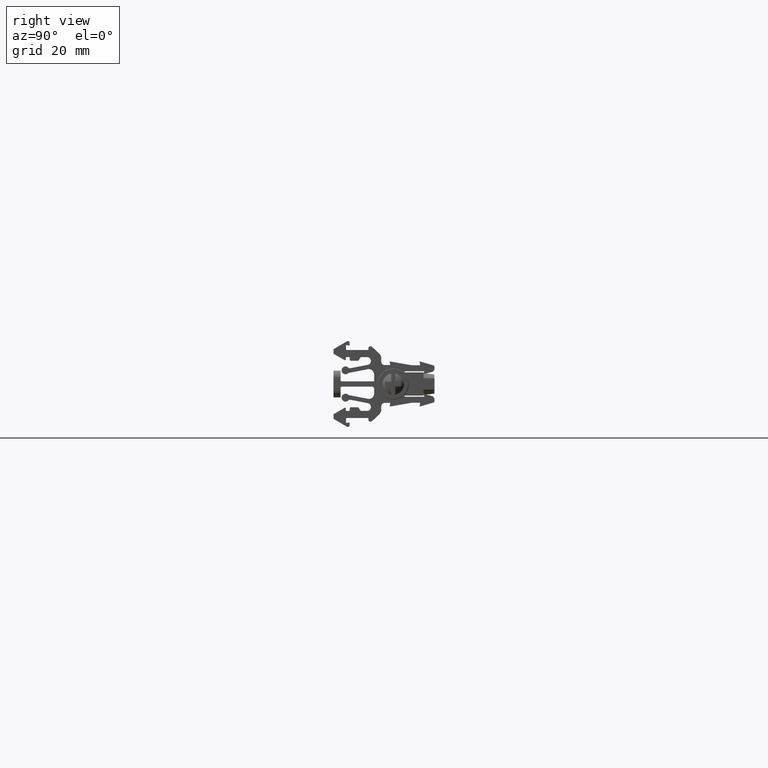
[diagram: clean part render]
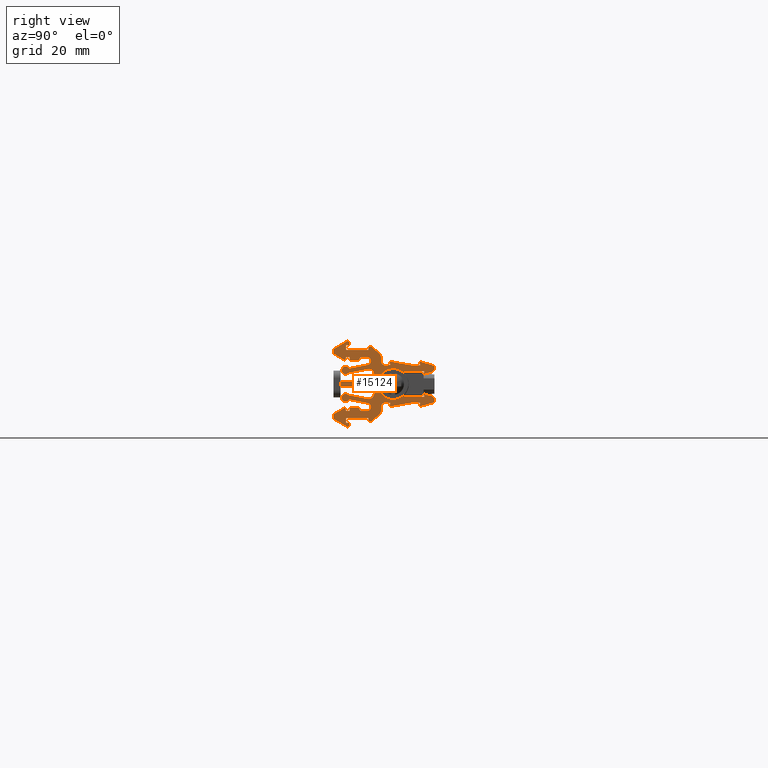
[diagram: same view with one face highlighted and labeled with its STEP entity id]
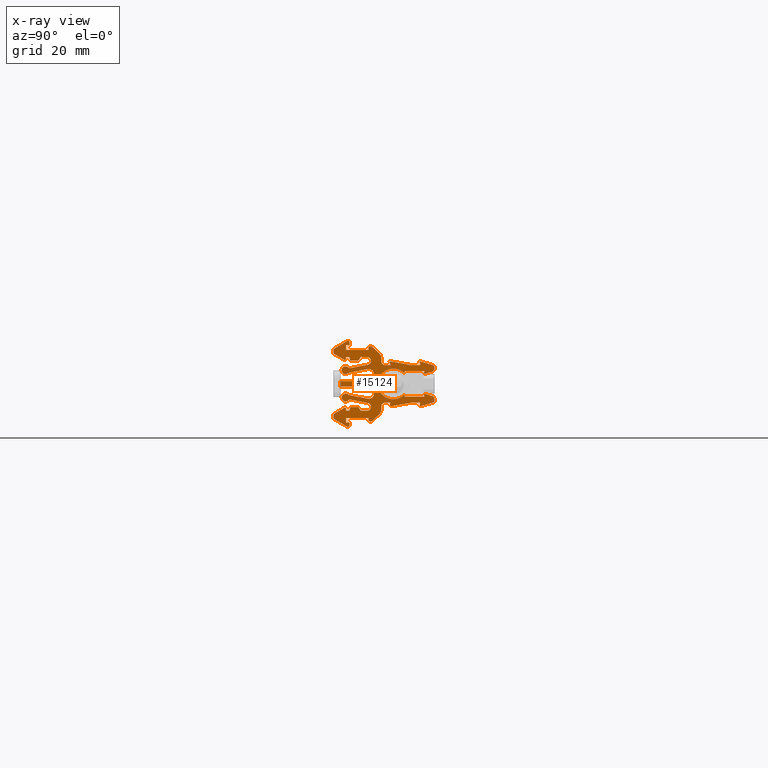
[diagram: x-ray of the same camera — body ghosted, the highlighted face saturated]
A machine part, right view. The second image highlights one B-rep face of the part: STEP entity #15124.
The next image is the same camera in x-ray: the body ghosted, the highlighted face saturated — about 0% of this face is hidden behind the body in this view.
In plain terms, the highlighted planar face has unit normal (1, 0, 0).
Its self-contained STEP definition (entity closure, byte-faithful):
#370 = VECTOR ( 'NONE', #17668, 1000.000000000000100 ) ;
#373 = VECTOR ( 'NONE', #17613, 1000.000000000000100 ) ;
#376 = VECTOR ( 'NONE', #17619, 1000.000000000000000 ) ;
#420 = VECTOR ( 'NONE', #17592, 1000.000000000000100 ) ;
#444 = VECTOR ( 'NONE', #17678, 1000.000000000000000 ) ;
#463 = VECTOR ( 'NONE', #10209, 1000.000000000000100 ) ;
#501 = VECTOR ( 'NONE', #9052, 1000.000000000000000 ) ;
#527 = CIRCLE ( 'NONE', #543, 0.5000000000183746400 ) ;
#533 = AXIS2_PLACEMENT_3D ( 'NONE', #9155, #9157, #9146 ) ;
#536 = VECTOR ( 'NONE', #9159, 1000.000000000000200 ) ;
#543 = AXIS2_PLACEMENT_3D ( 'NONE', #9091, #9099, #9082 ) ;
#547 = AXIS2_PLACEMENT_3D ( 'NONE', #9166, #9168, #9169 ) ;
#551 = CIRCLE ( 'NONE', #533, 0.2000000000076732100 ) ;
#564 = CIRCLE ( 'NONE', #547, 0.2000000000074789200 ) ;
#568 = VECTOR ( 'NONE', #9223, 1000.000000000000000 ) ;
#606 = VECTOR ( 'NONE', #9306, 1000.000000000000100 ) ;
#609 = CIRCLE ( 'NONE', #615, 1.000000000036825700 ) ;
#615 = AXIS2_PLACEMENT_3D ( 'NONE', #9348, #9315, #9330 ) ;
#625 = AXIS2_PLACEMENT_3D ( 'NONE', #28677, #28675, #28660 ) ;
#629 = VECTOR ( 'NONE', #28654, 1000.000000000000000 ) ;
#632 = AXIS2_PLACEMENT_3D ( 'NONE', #28720, #28697, #28721 ) ;
#639 = VECTOR ( 'NONE', #28727, 1000.000000000000000 ) ;
#645 = CIRCLE ( 'NONE', #673, 1.000000000036756200 ) ;
#651 = VECTOR ( 'NONE', #28679, 1000.000000000000000 ) ;
#652 = CIRCLE ( 'NONE', #675, 1.000000000036881200 ) ;
#653 = CIRCLE ( 'NONE', #625, 0.5000000000182358600 ) ;
#670 = CIRCLE ( 'NONE', #632, 1.000000000036318900 ) ;
#672 = VECTOR ( 'NONE', #28763, 1000.000000000000000 ) ;
#673 = AXIS2_PLACEMENT_3D ( 'NONE', #28754, #28765, #28767 ) ;
#675 = AXIS2_PLACEMENT_3D ( 'NONE', #28756, #28758, #28779 ) ;
#686 = VECTOR ( 'NONE', #28857, 1000.000000000000100 ) ;
#687 = VECTOR ( 'NONE', #28856, 1000.000000000000100 ) ;
#707 = VECTOR ( 'NONE', #28869, 1000.000000000000000 ) ;
#709 = VECTOR ( 'NONE', #28825, 1000.000000000000000 ) ;
#734 = CIRCLE ( 'NONE', #744, 0.5000000000187145900 ) ;
#739 = VECTOR ( 'NONE', #28862, 1000.000000000000000 ) ;
#744 = AXIS2_PLACEMENT_3D ( 'NONE', #28915, #28916, #28903 ) ;
#763 = VECTOR ( 'NONE', #28890, 1000.000000000000100 ) ;
#766 = VECTOR ( 'NONE', #29065, 1000.000000000000100 ) ;
#771 = VECTOR ( 'NONE', #29158, 1000.000000000000000 ) ;
#772 = VECTOR ( 'NONE', #29164, 1000.000000000000000 ) ;
#777 = VECTOR ( 'NONE', #29160, 1000.000000000000200 ) ;
#780 = VECTOR ( 'NONE', #29028, 1000.000000000000000 ) ;
#786 = VECTOR ( 'NONE', #29027, 1000.000000000000000 ) ;
#803 = VECTOR ( 'NONE', #29141, 1000.000000000000000 ) ;
#806 = VECTOR ( 'NONE', #29104, 1000.000000000000000 ) ;
#881 = VECTOR ( 'NONE', #28398, 1000.000000000000200 ) ;
#899 = VECTOR ( 'NONE', #28403, 1000.000000000000200 ) ;
#904 = VECTOR ( 'NONE', #28433, 1000.000000000000100 ) ;
#913 = VECTOR ( 'NONE', #28481, 1000.000000000000100 ) ;
#914 = CIRCLE ( 'NONE', #929, 1.100000000040436600 ) ;
#916 = VECTOR ( 'NONE', #28484, 1000.000000000000100 ) ;
#917 = VECTOR ( 'NONE', #28486, 1000.000000000000100 ) ;
#921 = VECTOR ( 'NONE', #28470, 1000.000000000000100 ) ;
#926 = CIRCLE ( 'NONE', #934, 0.2976190476298296000 ) ;
#927 = VECTOR ( 'NONE', #28492, 1000.000000000000100 ) ;
#929 = AXIS2_PLACEMENT_3D ( 'NONE', #28489, #28509, #28474 ) ;
#932 = VECTOR ( 'NONE', #28471, 1000.000000000000200 ) ;
#934 = AXIS2_PLACEMENT_3D ( 'NONE', #28533, #28526, #28547 ) ;
#937 = CIRCLE ( 'NONE', #959, 4.325000000000072100 ) ;
#952 = VECTOR ( 'NONE', #28520, 1000.000000000000100 ) ;
#959 = AXIS2_PLACEMENT_3D ( 'NONE', #28529, #28549, #28537 ) ;
#965 = VECTOR ( 'NONE', #17517, 1000.000000000000100 ) ;
#966 = VECTOR ( 'NONE', #17591, 1000.000000000000200 ) ;
#967 = AXIS2_PLACEMENT_3D ( 'NONE', #17558, #17567, #17612 ) ;
#970 = VECTOR ( 'NONE', #28639, 1000.000000000000000 ) ;
#971 = VECTOR ( 'NONE', #28620, 1000.000000000000000 ) ;
#972 = VECTOR ( 'NONE', #17581, 1000.000000000000200 ) ;
#973 = VECTOR ( 'NONE', #28635, 1000.000000000000000 ) ;
#978 = AXIS2_PLACEMENT_3D ( 'NONE', #28600, #28602, #28564 ) ;
#979 = AXIS2_PLACEMENT_3D ( 'NONE', #17503, #17512, #17521 ) ;
#985 = VECTOR ( 'NONE', #17610, 1000.000000000000000 ) ;
#986 = VECTOR ( 'NONE', #17594, 1000.000000000000000 ) ;
#987 = VECTOR ( 'NONE', #28504, 1000.000000000000000 ) ;
#989 = VECTOR ( 'NONE', #28626, 1000.000000000000000 ) ;
#991 = VECTOR ( 'NONE', #28694, 999.9999999999998900 ) ;
#992 = CIRCLE ( 'NONE', #979, 1.007999999999995100 ) ;
#995 = VECTOR ( 'NONE', #17564, 1000.000000000000000 ) ;
#998 = VECTOR ( 'NONE', #17537, 1000.000000000000000 ) ;
#1001 = VECTOR ( 'NONE', #17577, 1000.000000000000100 ) ;
#1002 = CIRCLE ( 'NONE', #967, 1.100000000040485300 ) ;
#1003 = VECTOR ( 'NONE', #28580, 1000.000000000000000 ) ;
#1004 = VECTOR ( 'NONE', #28573, 1000.000000000000100 ) ;
#1006 = VECTOR ( 'NONE', #17504, 1000.000000000000000 ) ;
#1014 = CIRCLE ( 'NONE', #978, 0.2976190476300794000 ) ;
#1049 = EDGE_CURVE ( 'NONE', #6638, #6556, #19688, .T. ) ;
#1051 = EDGE_CURVE ( 'NONE', #6628, #6429, #19728, .T. ) ;
#1057 = EDGE_CURVE ( 'NONE', #6692, #6524, #19739, .T. ) ;
#1059 = EDGE_CURVE ( 'NONE', #6681, #6540, #19697, .T. ) ;
#1062 = EDGE_CURVE ( 'NONE', #6419, #6722, #21043, .T. ) ;
#1063 = EDGE_CURVE ( 'NONE', #6427, #6630, #19743, .T. ) ;
#1069 = EDGE_CURVE ( 'NONE', #6640, #6496, #19730, .T. ) ;
#1071 = EDGE_CURVE ( 'NONE', #6269, #6625, #19741, .T. ) ;
#1072 = EDGE_CURVE ( 'NONE', #6562, #6655, #21017, .T. ) ;
#1074 = EDGE_CURVE ( 'NONE', #6421, #6673, #19725, .T. ) ;
#1077 = EDGE_CURVE ( 'NONE', #6731, #6434, #19715, .T. ) ;
#1078 = EDGE_CURVE ( 'NONE', #6675, #6549, #21027, .T. ) ;
#1082 = EDGE_CURVE ( 'NONE', #15691, #6632, #19708, .T. ) ;
#1086 = EDGE_CURVE ( 'NONE', #6453, #6631, #19704, .T. ) ;
#1088 = EDGE_CURVE ( 'NONE', #6664, #6638, #22904, .T. ) ;
#1101 = EDGE_CURVE ( 'NONE', #6476, #6647, #21124, .T. ) ;
#1103 = EDGE_CURVE ( 'NONE', #6426, #6659, #19752, .T. ) ;
#1105 = EDGE_CURVE ( 'NONE', #6608, #6672, #21144, .T. ) ;
#1106 = EDGE_CURVE ( 'NONE', #6600, #6431, #21177, .T. ) ;
#1113 = EDGE_CURVE ( 'NONE', #6597, #6702, #21190, .T. ) ;
#1115 = EDGE_CURVE ( 'NONE', #6623, #6701, #19218, .T. ) ;
#1120 = EDGE_CURVE ( 'NONE', #15611, #6719, #19212, .T. ) ;
#1134 = EDGE_CURVE ( 'NONE', #6500, #6649, #19227, .T. ) ;
#1136 = EDGE_CURVE ( 'NONE', #6455, #6689, #19241, .T. ) ;
#1143 = EDGE_CURVE ( 'NONE', #6483, #6679, #19248, .T. ) ;
#1147 = EDGE_CURVE ( 'NONE', #6701, #6657, #22884, .T. ) ;
#1148 = EDGE_CURVE ( 'NONE', #6504, #6665, #19253, .T. ) ;
#1158 = EDGE_CURVE ( 'NONE', #6674, #6648, #19273, .T. ) ;
#1159 = EDGE_CURVE ( 'NONE', #6707, #6726, #10035, .T. ) ;
#1160 = EDGE_CURVE ( 'NONE', #6627, #6525, #19280, .T. ) ;
#1171 = EDGE_CURVE ( 'NONE', #6712, #6512, #19282, .T. ) ;
#1191 = EDGE_CURVE ( 'NONE', #6735, #6539, #10301, .T. ) ;
#1249 = EDGE_CURVE ( 'NONE', #6545, #6821, #10628, .T. ) ;
#1267 = EDGE_CURVE ( 'NONE', #6834, #6575, #5409, .T. ) ;
#1345 = EDGE_CURVE ( 'NONE', #6594, #6839, #5529, .T. ) ;
#1346 = EDGE_CURVE ( 'NONE', #6814, #6584, #22915, .T. ) ;
#1347 = EDGE_CURVE ( 'NONE', #6852, #6576, #10847, .T. ) ;
#1352 = EDGE_CURVE ( 'NONE', #6573, #6836, #22902, .T. ) ;
#1434 = EDGE_CURVE ( 'NONE', #6447, #6500, #8630, .T. ) ;
#1458 = EDGE_CURVE ( 'NONE', #6540, #6393, #8715, .T. ) ;
#1468 = EDGE_CURVE ( 'NONE', #6524, #6360, #8710, .T. ) ;
#1477 = EDGE_CURVE ( 'NONE', #6381, #6504, #8776, .T. ) ;
#1482 = EDGE_CURVE ( 'NONE', #6519, #6461, #8786, .T. ) ;
#1491 = EDGE_CURVE ( 'NONE', #6419, #6445, #5686, .T. ) ;
#1515 = EDGE_CURVE ( 'NONE', #6594, #6437, #26928, .T. ) ;
#1548 = EDGE_CURVE ( 'NONE', #6549, #6545, #27021, .T. ) ;
#1554 = EDGE_CURVE ( 'NONE', #15639, #6671, #27061, .T. ) ;
#1556 = EDGE_CURVE ( 'NONE', #6575, #6439, #27070, .T. ) ;
#1557 = EDGE_CURVE ( 'NONE', #6584, #6468, #22878, .T. ) ;
#1563 = EDGE_CURVE ( 'NONE', #6637, #6604, #5774, .T. ) ;
#1568 = EDGE_CURVE ( 'NONE', #6573, #6450, #22912, .T. ) ;
#1570 = EDGE_CURVE ( 'NONE', #6597, #6576, #27183, .T. ) ;
#1585 = EDGE_CURVE ( 'NONE', #6643, #6469, #5799, .T. ) ;
#5203 = CARTESIAN_POINT ( 'NONE',  ( -26.03039649368610500, -54.09701030872743400, 89.24558864610672500 ) ) ;
#5242 = CARTESIAN_POINT ( 'NONE',  ( -26.03039649368620400, -48.89155189804014200, 106.0354419896609000 ) ) ;
#5404 = VECTOR ( 'NONE', #10642, 1000.000000000000000 ) ;
#5406 = AXIS2_PLACEMENT_3D ( 'NONE', #10535, #10526, #10544 ) ;
#5409 = CIRCLE ( 'NONE', #5406, 0.5000000000184058300 ) ;
#5502 = AXIS2_PLACEMENT_3D ( 'NONE', #10856, #10861, #10886 ) ;
#5511 = VECTOR ( 'NONE', #10887, 1000.000000000000000 ) ;
#5529 = CIRCLE ( 'NONE', #5502, 0.5000000000186903800 ) ;
#5623 = VECTOR ( 'NONE', #8646, 1000.000000000000000 ) ;
#5636 = VECTOR ( 'NONE', #8725, 1000.000000000000100 ) ;
#5671 = AXIS2_PLACEMENT_3D ( 'NONE', #27260, #27263, #27264 ) ;
#5681 = VECTOR ( 'NONE', #8768, 1000.000000000000100 ) ;
#5686 = CIRCLE ( 'NONE', #5671, 0.5000000000183885100 ) ;
#5700 = VECTOR ( 'NONE', #8784, 1000.000000000000000 ) ;
#5701 = VECTOR ( 'NONE', #8718, 1000.000000000000100 ) ;
#5724 = VECTOR ( 'NONE', #26930, 1000.000000000000000 ) ;
#5750 = VECTOR ( 'NONE', #27111, 1000.000000000000000 ) ;
#5756 = VECTOR ( 'NONE', #27064, 1000.000000000000000 ) ;
#5758 = VECTOR ( 'NONE', #27071, 1000.000000000000200 ) ;
#5774 = CIRCLE ( 'NONE', #5777, 0.5000000000183052500 ) ;
#5777 = AXIS2_PLACEMENT_3D ( 'NONE', #27093, #27147, #27129 ) ;
#5785 = VECTOR ( 'NONE', #27217, 1000.000000000000100 ) ;
#5789 = AXIS2_PLACEMENT_3D ( 'NONE', #14300, #14315, #14303 ) ;
#5799 = CIRCLE ( 'NONE', #5789, 1.000000000036978200 ) ;
#6251 = VERTEX_POINT ( 'NONE', #17081 ) ;
#6254 = VERTEX_POINT ( 'NONE', #17128 ) ;
#6269 = VERTEX_POINT ( 'NONE', #17085 ) ;
#6270 = ORIENTED_EDGE ( 'NONE', *, *, #10950, .T. ) ;
#6294 = VERTEX_POINT ( 'NONE', #17136 ) ;
#6300 = VERTEX_POINT ( 'NONE', #17184 ) ;
#6303 = VERTEX_POINT ( 'NONE', #17172 ) ;
#6304 = VERTEX_POINT ( 'NONE', #17141 ) ;
#6308 = VERTEX_POINT ( 'NONE', #17166 ) ;
#6310 = VERTEX_POINT ( 'NONE', #17185 ) ;
#6314 = VERTEX_POINT ( 'NONE', #17191 ) ;
#6318 = VERTEX_POINT ( 'NONE', #17140 ) ;
#6319 = VERTEX_POINT ( 'NONE', #17142 ) ;
#6323 = VERTEX_POINT ( 'NONE', #17180 ) ;
#6325 = VERTEX_POINT ( 'NONE', #17178 ) ;
#6329 = VERTEX_POINT ( 'NONE', #17192 ) ;
#6330 = VERTEX_POINT ( 'NONE', #17148 ) ;
#6342 = VERTEX_POINT ( 'NONE', #17165 ) ;
#6346 = VERTEX_POINT ( 'NONE', #17159 ) ;
#6354 = VERTEX_POINT ( 'NONE', #17194 ) ;
#6355 = VERTEX_POINT ( 'NONE', #17163 ) ;
#6360 = VERTEX_POINT ( 'NONE', #17241 ) ;
#6381 = VERTEX_POINT ( 'NONE', #17204 ) ;
#6382 = VERTEX_POINT ( 'NONE', #17243 ) ;
#6385 = VERTEX_POINT ( 'NONE', #17225 ) ;
#6387 = VERTEX_POINT ( 'NONE', #17230 ) ;
#6388 = VERTEX_POINT ( 'NONE', #17235 ) ;
#6393 = VERTEX_POINT ( 'NONE', #17232 ) ;
#6400 = VERTEX_POINT ( 'NONE', #17239 ) ;
#6401 = VERTEX_POINT ( 'NONE', #17236 ) ;
#6419 = VERTEX_POINT ( 'NONE', #5242 ) ;
#6421 = VERTEX_POINT ( 'NONE', #22723 ) ;
#6426 = VERTEX_POINT ( 'NONE', #29389 ) ;
#6427 = VERTEX_POINT ( 'NONE', #5203 ) ;
#6429 = VERTEX_POINT ( 'NONE', #14524 ) ;
#6431 = VERTEX_POINT ( 'NONE', #7723 ) ;
#6434 = VERTEX_POINT ( 'NONE', #10878 ) ;
#6437 = VERTEX_POINT ( 'NONE', #20934 ) ;
#6439 = VERTEX_POINT ( 'NONE', #30842 ) ;
#6445 = VERTEX_POINT ( 'NONE', #9377 ) ;
#6447 = VERTEX_POINT ( 'NONE', #9410 ) ;
#6450 = VERTEX_POINT ( 'NONE', #9356 ) ;
#6453 = VERTEX_POINT ( 'NONE', #9394 ) ;
#6455 = VERTEX_POINT ( 'NONE', #9398 ) ;
#6459 = VERTEX_POINT ( 'NONE', #9353 ) ;
#6461 = VERTEX_POINT ( 'NONE', #9399 ) ;
#6468 = VERTEX_POINT ( 'NONE', #9411 ) ;
#6469 = VERTEX_POINT ( 'NONE', #9391 ) ;
#6476 = VERTEX_POINT ( 'NONE', #9403 ) ;
#6483 = VERTEX_POINT ( 'NONE', #9404 ) ;
#6496 = VERTEX_POINT ( 'NONE', #9379 ) ;
#6500 = VERTEX_POINT ( 'NONE', #9402 ) ;
#6504 = VERTEX_POINT ( 'NONE', #9407 ) ;
#6512 = VERTEX_POINT ( 'NONE', #9476 ) ;
#6519 = VERTEX_POINT ( 'NONE', #9457 ) ;
#6524 = VERTEX_POINT ( 'NONE', #9466 ) ;
#6525 = VERTEX_POINT ( 'NONE', #9423 ) ;
#6539 = VERTEX_POINT ( 'NONE', #9440 ) ;
#6540 = VERTEX_POINT ( 'NONE', #9454 ) ;
#6545 = VERTEX_POINT ( 'NONE', #9450 ) ;
#6549 = VERTEX_POINT ( 'NONE', #9467 ) ;
#6556 = VERTEX_POINT ( 'NONE', #9426 ) ;
#6562 = VERTEX_POINT ( 'NONE', #9469 ) ;
#6573 = VERTEX_POINT ( 'NONE', #9478 ) ;
#6575 = VERTEX_POINT ( 'NONE', #9540 ) ;
#6576 = VERTEX_POINT ( 'NONE', #9491 ) ;
#6584 = VERTEX_POINT ( 'NONE', #9482 ) ;
#6594 = VERTEX_POINT ( 'NONE', #9485 ) ;
#6597 = VERTEX_POINT ( 'NONE', #9486 ) ;
#6600 = VERTEX_POINT ( 'NONE', #9505 ) ;
#6604 = VERTEX_POINT ( 'NONE', #9504 ) ;
#6608 = VERTEX_POINT ( 'NONE', #9518 ) ;
#6623 = VERTEX_POINT ( 'NONE', #9498 ) ;
#6625 = VERTEX_POINT ( 'NONE', #9501 ) ;
#6627 = VERTEX_POINT ( 'NONE', #9506 ) ;
#6628 = VERTEX_POINT ( 'NONE', #9507 ) ;
#6630 = VERTEX_POINT ( 'NONE', #9533 ) ;
#6631 = VERTEX_POINT ( 'NONE', #9535 ) ;
#6632 = VERTEX_POINT ( 'NONE', #9536 ) ;
#6637 = VERTEX_POINT ( 'NONE', #9586 ) ;
#6638 = VERTEX_POINT ( 'NONE', #9568 ) ;
#6640 = VERTEX_POINT ( 'NONE', #9587 ) ;
#6643 = VERTEX_POINT ( 'NONE', #9541 ) ;
#6647 = VERTEX_POINT ( 'NONE', #9579 ) ;
#6648 = VERTEX_POINT ( 'NONE', #9596 ) ;
#6649 = VERTEX_POINT ( 'NONE', #9580 ) ;
#6655 = VERTEX_POINT ( 'NONE', #9593 ) ;
#6657 = VERTEX_POINT ( 'NONE', #9597 ) ;
#6659 = VERTEX_POINT ( 'NONE', #9550 ) ;
#6664 = VERTEX_POINT ( 'NONE', #9547 ) ;
#6665 = VERTEX_POINT ( 'NONE', #9577 ) ;
#6671 = VERTEX_POINT ( 'NONE', #9582 ) ;
#6672 = VERTEX_POINT ( 'NONE', #9559 ) ;
#6673 = VERTEX_POINT ( 'NONE', #9554 ) ;
#6674 = VERTEX_POINT ( 'NONE', #9572 ) ;
#6675 = VERTEX_POINT ( 'NONE', #9549 ) ;
#6679 = VERTEX_POINT ( 'NONE', #9589 ) ;
#6681 = VERTEX_POINT ( 'NONE', #9594 ) ;
#6689 = VERTEX_POINT ( 'NONE', #9599 ) ;
#6692 = VERTEX_POINT ( 'NONE', #9567 ) ;
#6701 = VERTEX_POINT ( 'NONE', #9655 ) ;
#6702 = VERTEX_POINT ( 'NONE', #9631 ) ;
#6707 = VERTEX_POINT ( 'NONE', #9640 ) ;
#6712 = VERTEX_POINT ( 'NONE', #9622 ) ;
#6719 = VERTEX_POINT ( 'NONE', #9618 ) ;
#6722 = VERTEX_POINT ( 'NONE', #9643 ) ;
#6726 = VERTEX_POINT ( 'NONE', #9625 ) ;
#6731 = VERTEX_POINT ( 'NONE', #9651 ) ;
#6735 = VERTEX_POINT ( 'NONE', #9620 ) ;
#6814 = VERTEX_POINT ( 'NONE', #9708 ) ;
#6821 = VERTEX_POINT ( 'NONE', #9731 ) ;
#6834 = VERTEX_POINT ( 'NONE', #9773 ) ;
#6836 = VERTEX_POINT ( 'NONE', #9793 ) ;
#6839 = VERTEX_POINT ( 'NONE', #9748 ) ;
#6852 = VERTEX_POINT ( 'NONE', #9770 ) ;
#7723 = CARTESIAN_POINT ( 'NONE',  ( -26.03039649368625100, -42.97391747135598200, 89.76944207269141900 ) ) ;
#8630 = LINE ( 'NONE', #8661, #5623 ) ;
#8646 = DIRECTION ( 'NONE',  ( 2.470852055924995400E-015, 2.747299447020945000E-029, -1.000000000000000000 ) ) ;
#8661 = CARTESIAN_POINT ( 'NONE',  ( -26.03039649368613000, -48.21707785647790700, 68.30975947004779400 ) ) ;
#8710 = LINE ( 'NONE', #8714, #5701 ) ;
#8713 = CARTESIAN_POINT ( 'NONE',  ( -26.03039649368613700, -55.22216519593791200, 102.8150616966217800 ) ) ;
#8714 = CARTESIAN_POINT ( 'NONE',  ( -26.03039649368617600, -51.59186578762810900, 102.6694420689814000 ) ) ;
#8715 = LINE ( 'NONE', #8713, #5636 ) ;
#8718 = DIRECTION ( 'NONE',  ( -1.001543111730708000E-014, 0.4999999694212269300, 0.8660254214391007700 ) ) ;
#8725 = DIRECTION ( 'NONE',  ( 0.0000000000000000000, 0.08715566094580456900, 0.9961947052484768600 ) ) ;
#8768 = DIRECTION ( 'NONE',  ( -4.759706671067948100E-015, 0.08715553781155270500, -0.9961947160213102700 ) ) ;
#8769 = CARTESIAN_POINT ( 'NONE',  ( -26.03039649368627200, -42.85787911342451700, 101.6113624438973900 ) ) ;
#8776 = LINE ( 'NONE', #8791, #5681 ) ;
#8784 = DIRECTION ( 'NONE',  ( 9.992792491393228500E-015, 0.1736443963426778600, -0.9848084197542114100 ) ) ;
#8786 = LINE ( 'NONE', #8769, #5700 ) ;
#8791 = CARTESIAN_POINT ( 'NONE',  ( -26.03039649368614800, -54.16053974086310800, 103.5194419876542000 ) ) ;
#9052 = DIRECTION ( 'NONE',  ( -1.111883425166246100E-014, 1.000000000000000000, 0.0000000000000000000 ) ) ;
#9070 = CARTESIAN_POINT ( 'NONE',  ( -26.03039649368624400, -45.88583688173471800, 103.5194419876539900 ) ) ;
#9073 = LINE ( 'NONE', #9070, #501 ) ;
#9082 = DIRECTION ( 'NONE',  ( 1.387778780730445800E-014, -1.000000000000000000, 0.0000000000000000000 ) ) ;
#9091 = CARTESIAN_POINT ( 'NONE',  ( -26.03039649368615800, -50.81244295244231100, 103.0194420689918200 ) ) ;
#9099 = DIRECTION ( 'NONE',  ( -1.000000000000000000, -1.101172293446148100E-014, -2.403906012228000300E-015 ) ) ;
#9107 = CARTESIAN_POINT ( 'NONE',  ( -26.03039649368610500, -54.16053975375722000, 85.30035670588799200 ) ) ;
#9116 = LINE ( 'NONE', #9107, #536 ) ;
#9146 = DIRECTION ( 'NONE',  ( 1.734723475910252800E-014, -1.000000000000000000, 0.0000000000000000000 ) ) ;
#9155 = CARTESIAN_POINT ( 'NONE',  ( -26.03039649368610500, -54.96053997683052500, 85.36238036855668600 ) ) ;
#9157 = DIRECTION ( 'NONE',  ( -1.000000000000000000, -1.101172293446148100E-014, -2.403906012228000300E-015 ) ) ;
#9159 = DIRECTION ( 'NONE',  ( 8.929490627641932000E-015, -0.9848077451303155500, -0.1736482223673576400 ) ) ;
#9166 = CARTESIAN_POINT ( 'NONE',  ( -26.03039649368615800, -54.96053989853711400, 106.6765033483969900 ) ) ;
#9168 = DIRECTION ( 'NONE',  ( -1.000000000000000000, -1.101172293446148100E-014, -2.403906012228000300E-015 ) ) ;
#9169 = DIRECTION ( 'NONE',  ( 1.734723475911937800E-014, -1.000000000000000000, 0.0000000000000000000 ) ) ;
#9207 = CARTESIAN_POINT ( 'NONE',  ( -26.03039649368641400, -30.48339834810681400, 91.98102457358528700 ) ) ;
#9208 = CARTESIAN_POINT ( 'NONE',  ( -26.03039649368629700, -30.45549407222436100, 91.88636542386380800 ) ) ;
#9213 = CARTESIAN_POINT ( 'NONE',  ( -26.03039649368640000, -30.45549407222415500, 100.1525187382405900 ) ) ;
#9218 = LINE ( 'NONE', #9219, #568 ) ;
#9219 = CARTESIAN_POINT ( 'NONE',  ( -26.03039649368610500, -56.66053995209190900, 68.30975947004779400 ) ) ;
#9220 = CARTESIAN_POINT ( 'NONE',  ( -26.03039649368640000, -30.44846174578290400, 100.2224675356974000 ) ) ;
#9223 = DIRECTION ( 'NONE',  ( 0.0000000000000000000, 0.0000000000000000000, 1.000000000000000000 ) ) ;
#9226 = CARTESIAN_POINT ( 'NONE',  ( -26.03039649368629700, -30.44846174578361100, 91.81641662640711800 ) ) ;
#9234 = CARTESIAN_POINT ( 'NONE',  ( -26.03039649368640300, -30.44510178766951100, 100.2697825717562000 ) ) ;
#9249 = CARTESIAN_POINT ( 'NONE',  ( -26.03039649368640300, -30.48339834810660800, 100.0578595885190100 ) ) ;
#9251 = CARTESIAN_POINT ( 'NONE',  ( -26.03039649368640000, -30.44510178766995900, 91.76910159034829900 ) ) ;
#9306 = DIRECTION ( 'NONE',  ( -0.0000000000000000000, -0.9848078535450401900, 0.1736476075159419900 ) ) ;
#9315 = DIRECTION ( 'NONE',  ( -1.000000000000000000, -1.101172293446148100E-014, -2.403906012228000300E-015 ) ) ;
#9318 = CARTESIAN_POINT ( 'NONE',  ( -26.03039649368615500, -39.28240710657015500, 104.1151201907031900 ) ) ;
#9330 = DIRECTION ( 'NONE',  ( 1.040834085547754900E-014, -1.000000000000000000, 0.0000000000000000000 ) ) ;
#9334 = LINE ( 'NONE', #9318, #606 ) ;
#9348 = CARTESIAN_POINT ( 'NONE',  ( -26.03039649368625400, -44.29758946941741000, 102.2694420689656000 ) ) ;
#9353 = CARTESIAN_POINT ( 'NONE',  ( -26.03039649368615500, -48.39155111648817400, 85.50344225065629200 ) ) ;
#9356 = CARTESIAN_POINT ( 'NONE',  ( -26.03039649368641100, -30.53406795944109900, 92.11611773361910600 ) ) ;
#9377 = CARTESIAN_POINT ( 'NONE',  ( -26.03039649368621200, -48.39155216239441200, 106.5354419896790100 ) ) ;
#9379 = CARTESIAN_POINT ( 'NONE',  ( -26.03039649368615100, -48.24130023330072700, 85.50344259688640100 ) ) ;
#9391 = CARTESIAN_POINT ( 'NONE',  ( -26.03039649368618300, -48.21707785647844000, 89.68061055848424700 ) ) ;
#9394 = CARTESIAN_POINT ( 'NONE',  ( -26.03039649368610500, -55.16053997683810900, 86.31144210965274500 ) ) ;
#9398 = CARTESIAN_POINT ( 'NONE',  ( -26.03039649368625400, -45.29758989815731200, 103.1384953311464700 ) ) ;
#9399 = CARTESIAN_POINT ( 'NONE',  ( -26.03039649368626800, -42.79759071436348000, 101.2694419424457900 ) ) ;
#9402 = CARTESIAN_POINT ( 'NONE',  ( -26.03039649368620400, -48.21707794391832600, 102.3582721707660000 ) ) ;
#9403 = CARTESIAN_POINT ( 'NONE',  ( -26.03039649368615100, -48.89155226868050600, 86.00344247954964800 ) ) ;
#9404 = CARTESIAN_POINT ( 'NONE',  ( -26.03039649368616500, -54.16053989850741600, 107.5194438776066300 ) ) ;
#9407 = CARTESIAN_POINT ( 'NONE',  ( -26.03039649368615100, -54.09701029757951600, 102.7932954076429900 ) ) ;
#9410 = CARTESIAN_POINT ( 'NONE',  ( -26.03039649368621200, -48.21707785647788600, 102.5194420664001700 ) ) ;
#9411 = CARTESIAN_POINT ( 'NONE',  ( -26.03039649368640300, -30.66891902962440900, 99.70702896610028200 ) ) ;
#9423 = CARTESIAN_POINT ( 'NONE',  ( -26.03039649368615100, -55.16053989854450600, 105.7274420178033000 ) ) ;
#9426 = CARTESIAN_POINT ( 'NONE',  ( -26.03039649368619400, -49.05806214138615200, 91.88651059802516800 ) ) ;
#9440 = CARTESIAN_POINT ( 'NONE',  ( -26.03039649368626800, -42.97391548409296300, 102.2694421502048000 ) ) ;
#9450 = CARTESIAN_POINT ( 'NONE',  ( -26.03039649368633200, -34.61891742302813000, 89.76944207269141900 ) ) ;
#9454 = CARTESIAN_POINT ( 'NONE',  ( -26.03039649368615500, -55.22216519522226700, 102.8150617048019900 ) ) ;
#9457 = CARTESIAN_POINT ( 'NONE',  ( -26.03039649368627200, -42.91666954549812400, 101.9447876781129600 ) ) ;
#9466 = CARTESIAN_POINT ( 'NONE',  ( -26.03039649368616500, -51.59186573949548900, 102.6694421523495600 ) ) ;
#9467 = CARTESIAN_POINT ( 'NONE',  ( -26.03039649368633900, -34.44259071128597300, 90.76944183380700800 ) ) ;
#9469 = CARTESIAN_POINT ( 'NONE',  ( -26.03039649368630000, -38.84917686797962900, 92.76706118472128500 ) ) ;
#9476 = CARTESIAN_POINT ( 'NONE',  ( -26.03039649368621500, -48.24130174602108000, 106.5354420691233800 ) ) ;
#9478 = CARTESIAN_POINT ( 'NONE',  ( -26.03039649368636100, -30.88215368367636100, 92.52646507583809000 ) ) ;
#9482 = CARTESIAN_POINT ( 'NONE',  ( -26.03039649368640000, -30.88215368367516000, 99.51241908626700200 ) ) ;
#9485 = CARTESIAN_POINT ( 'NONE',  ( -26.03039649368641100, -30.44258989760469100, 100.7694419875528200 ) ) ;
#9486 = CARTESIAN_POINT ( 'NONE',  ( -26.03039649368636100, -34.44259071128598000, 101.2694418663313900 ) ) ;
#9491 = CARTESIAN_POINT ( 'NONE',  ( -26.03039649368636100, -34.61891742302814400, 102.2694420894127900 ) ) ;
#9498 = CARTESIAN_POINT ( 'NONE',  ( -26.03039649368620400, -49.05806216478978100, 100.1523731598825600 ) ) ;
#9501 = CARTESIAN_POINT ( 'NONE',  ( -26.03039649368611200, -56.24258989762001400, 95.26944206397554600 ) ) ;
#9504 = CARTESIAN_POINT ( 'NONE',  ( -26.03039649368610900, -54.53964225596719500, 93.01974791819978300 ) ) ;
#9505 = CARTESIAN_POINT ( 'NONE',  ( -26.03039649368625100, -42.57940837854524600, 89.76944231880870000 ) ) ;
#9506 = CARTESIAN_POINT ( 'NONE',  ( -26.03039649368615100, -54.96083814698983600, 105.5274422914679600 ) ) ;
#9507 = CARTESIAN_POINT ( 'NONE',  ( -26.03039649368610500, -55.52140419083083600, 89.37959624491456600 ) ) ;
#9518 = CARTESIAN_POINT ( 'NONE',  ( -26.03039649368606200, -58.64466689906235100, 87.57637972797437000 ) ) ;
#9533 = CARTESIAN_POINT ( 'NONE',  ( -26.03039649368611600, -53.79815184249170600, 89.51944199458748100 ) ) ;
#9535 = CARTESIAN_POINT ( 'NONE',  ( -26.03039649368610500, -54.96065835821866600, 86.51144207265743100 ) ) ;
#9536 = CARTESIAN_POINT ( 'NONE',  ( -26.03039649368611200, -54.01132721909316100, 91.62815484310407000 ) ) ;
#9540 = CARTESIAN_POINT ( 'NONE',  ( -26.03039649368640300, -30.44258989760493300, 91.26944198721021500 ) ) ;
#9541 = CARTESIAN_POINT ( 'NONE',  ( -26.03039649368616500, -49.04342985372262800, 90.66541880934205700 ) ) ;
#9547 = CARTESIAN_POINT ( 'NONE',  ( -26.03039649368620400, -47.29758990692386100, 93.36372244445499300 ) ) ;
#9549 = CARTESIAN_POINT ( 'NONE',  ( -26.03039649368631100, -36.90812667631848100, 90.76944178611789500 ) ) ;
#9550 = CARTESIAN_POINT ( 'NONE',  ( -26.03039649368619400, -45.94735969027653500, 87.42496512072534600 ) ) ;
#9554 = CARTESIAN_POINT ( 'NONE',  ( -26.03039649368609800, -54.98107747304472100, 84.13570119003088600 ) ) ;
#9559 = CARTESIAN_POINT ( 'NONE',  ( -26.03039649368605900, -58.64466689906235100, 86.29552938883752200 ) ) ;
#9567 = CARTESIAN_POINT ( 'NONE',  ( -26.03039649368615100, -51.85167330566201100, 102.5194421477573200 ) ) ;
#9568 = CARTESIAN_POINT ( 'NONE',  ( -26.03039649368620400, -48.29758989826771700, 91.94950888202988900 ) ) ;
#9572 = CARTESIAN_POINT ( 'NONE',  ( -26.03039649368615100, -54.01132721908890500, 100.4107291316599100 ) ) ;
#9577 = CARTESIAN_POINT ( 'NONE',  ( -26.03039649368615500, -53.79815188276201400, 102.5194420689761200 ) ) ;
#9579 = CARTESIAN_POINT ( 'NONE',  ( -26.03039649368615800, -48.89155226868050600, 86.51144221565189700 ) ) ;
#9580 = CARTESIAN_POINT ( 'NONE',  ( -26.03039649368620100, -49.04342984413806800, 101.3734649619422900 ) ) ;
#9582 = CARTESIAN_POINT ( 'NONE',  ( -26.03039649368630400, -38.84917694567063500, 99.27182284286037400 ) ) ;
#9586 = CARTESIAN_POINT ( 'NONE',  ( -26.03039649368611600, -54.28811458948056400, 92.89547185873040300 ) ) ;
#9587 = CARTESIAN_POINT ( 'NONE',  ( -26.03039649368615500, -47.90374403084518900, 85.63458624974725800 ) ) ;
#9589 = CARTESIAN_POINT ( 'NONE',  ( -26.03039649368613000, -54.98107746015146100, 107.9031828437538300 ) ) ;
#9593 = CARTESIAN_POINT ( 'NONE',  ( -26.03039649368627900, -38.84917653394941100, 93.00656158410758700 ) ) ;
#9594 = CARTESIAN_POINT ( 'NONE',  ( -26.03039649368615100, -55.52140414134590400, 102.6592877677450000 ) ) ;
#9596 = CARTESIAN_POINT ( 'NONE',  ( -26.03039649368612300, -54.46873406097413600, 100.5674718350277600 ) ) ;
#9597 = CARTESIAN_POINT ( 'NONE',  ( -26.03039649368620800, -47.29758990692386100, 98.67516153030818800 ) ) ;
#9599 = CARTESIAN_POINT ( 'NONE',  ( -26.03039649368625100, -45.94735960211085800, 104.6139190792383000 ) ) ;
#9618 = CARTESIAN_POINT ( 'NONE',  ( -26.03039649368618000, -54.28811458948000300, 99.14341211603284900 ) ) ;
#9620 = CARTESIAN_POINT ( 'NONE',  ( -26.03039649368625400, -42.57940709247738200, 102.2694423242277800 ) ) ;
#9622 = CARTESIAN_POINT ( 'NONE',  ( -26.03039649368620800, -47.90374423001228600, 106.4042982573353800 ) ) ;
#9625 = CARTESIAN_POINT ( 'NONE',  ( -26.03039649368610500, -58.64466688616826000, 104.4625044931520100 ) ) ;
#9631 = CARTESIAN_POINT ( 'NONE',  ( -26.03039649368635000, -36.90812730333667700, 101.2694417650353200 ) ) ;
#9640 = CARTESIAN_POINT ( 'NONE',  ( -26.03039649368610500, -58.64466688616825300, 105.7433548322886200 ) ) ;
#9643 = CARTESIAN_POINT ( 'NONE',  ( -26.03039649368621500, -48.89155204794706600, 105.5274422914679900 ) ) ;
#9651 = CARTESIAN_POINT ( 'NONE',  ( -26.03039649368614800, -51.85167335582460900, 89.51944199458748100 ) ) ;
#9655 = CARTESIAN_POINT ( 'NONE',  ( -26.03039649368621200, -48.29758989826816400, 100.0893750927339200 ) ) ;
#9708 = CARTESIAN_POINT ( 'NONE',  ( -26.03039649368640000, -31.18377140177468500, 99.37469088216749900 ) ) ;
#9731 = CARTESIAN_POINT ( 'NONE',  ( -26.03039649368633600, -34.38262018978242900, 89.76944207269141900 ) ) ;
#9748 = CARTESIAN_POINT ( 'NONE',  ( -26.03039649368638200, -30.89492487859642000, 101.2671648481689000 ) ) ;
#9770 = CARTESIAN_POINT ( 'NONE',  ( -26.03039649368635700, -34.38262018978284100, 102.2694420894127200 ) ) ;
#9773 = CARTESIAN_POINT ( 'NONE',  ( -26.03039649368640000, -30.89492487859668700, 90.77171912659443400 ) ) ;
#9793 = CARTESIAN_POINT ( 'NONE',  ( -26.03039649368636100, -31.18377119128509600, 92.66419340168346300 ) ) ;
#9800 = DIRECTION ( 'NONE',  ( 1.040834085547856100E-014, -1.000000000000000000, -1.387778780730474800E-014 ) ) ;
#9803 = DIRECTION ( 'NONE',  ( 1.000000000000000000, 1.101172293446148100E-014, 2.403906012228000300E-015 ) ) ;
#9810 = DIRECTION ( 'NONE',  ( 1.387778780730387900E-014, -1.000000000000000000, 0.0000000000000000000 ) ) ;
#9858 = CARTESIAN_POINT ( 'NONE',  ( -26.03039649368623600, -47.29758989823051300, 103.1384943445483900 ) ) ;
#9882 = CARTESIAN_POINT ( 'NONE',  ( -26.03039649368615800, -54.66053989852581200, 107.5194437766712000 ) ) ;
#9884 = DIRECTION ( 'NONE',  ( 1.000000000000000000, 1.101172293446148100E-014, 2.403906012228000300E-015 ) ) ;
#9910 = CARTESIAN_POINT ( 'NONE',  ( -26.03039649368621200, -48.29758989826816400, 100.0893750927339200 ) ) ;
#9912 = CARTESIAN_POINT ( 'NONE',  ( -26.03039649368627900, -47.71718111209490600, 99.72879493452839500 ) ) ;
#9919 = CARTESIAN_POINT ( 'NONE',  ( -26.03039649368627900, -48.13205051154621100, 100.0222602415513900 ) ) ;
#9922 = CARTESIAN_POINT ( 'NONE',  ( -26.03039649368615500, -53.79815188276191400, 102.8194420689873900 ) ) ;
#9924 = DIRECTION ( 'NONE',  ( 1.156482317274478100E-014, -1.000000000000000000, 0.0000000000000000000 ) ) ;
#9931 = CARTESIAN_POINT ( 'NONE',  ( -26.03039649368627900, -48.21228471264790000, 100.0592151551228000 ) ) ;
#9935 = CARTESIAN_POINT ( 'NONE',  ( -26.03039649368627900, -47.39336445689371400, 99.22095660435597600 ) ) ;
#9942 = CARTESIAN_POINT ( 'NONE',  ( -26.03039649368627900, -47.98030630622140100, 99.93598076528068900 ) ) ;
#9944 = CARTESIAN_POINT ( 'NONE',  ( -26.03039649368620800, -47.29758990692386100, 98.67516153030818800 ) ) ;
#9952 = CARTESIAN_POINT ( 'NONE',  ( -26.03039649368627900, -47.31643215351289900, 98.95068482915400000 ) ) ;
#9964 = CARTESIAN_POINT ( 'NONE',  ( -26.03039649368627900, -47.61289858575690900, 99.60728573305459600 ) ) ;
#9966 = CARTESIAN_POINT ( 'NONE',  ( -26.03039649368627900, -47.29758989823140800, 98.81292992289628800 ) ) ;
#9969 = DIRECTION ( 'NONE',  ( 1.000000000000000000, 1.101172293446148100E-014, 2.403906012228000300E-015 ) ) ;
#9976 = CARTESIAN_POINT ( 'NONE',  ( -26.03039649368627900, -47.90908806977300600, 99.88653311854840000 ) ) ;
#9978 = CARTESIAN_POINT ( 'NONE',  ( -26.03039649368627900, -47.45223095862552800, 99.35513091109122300 ) ) ;
#9990 = CARTESIAN_POINT ( 'NONE',  ( -26.03039649368615500, -54.09815130792950600, 100.9031330081834000 ) ) ;
#10001 = CARTESIAN_POINT ( 'NONE',  ( -26.03039649368601300, -58.64466688616821000, 68.30975947004779400 ) ) ;
#10013 = CARTESIAN_POINT ( 'NONE',  ( -26.03039649368615500, -54.96053989853721300, 105.7274420690947900 ) ) ;
#10027 = DIRECTION ( 'NONE',  ( 1.387778780730541900E-014, -1.000000000000000000, 0.0000000000000000000 ) ) ;
#10035 = LINE ( 'NONE', #10001, #19290 ) ;
#10059 = DIRECTION ( 'NONE',  ( -1.000000000000000000, -1.101172293446148100E-014, -2.403906012228000300E-015 ) ) ;
#10069 = DIRECTION ( 'NONE',  ( 2.470852055924995400E-015, 2.747299447020945000E-029, -1.000000000000000000 ) ) ;
#10107 = DIRECTION ( 'NONE',  ( -1.000000000000000000, -1.101172293446148100E-014, -2.403906012228000300E-015 ) ) ;
#10156 = DIRECTION ( 'NONE',  ( 1.734723475913261800E-014, -1.000000000000000000, 0.0000000000000000000 ) ) ;
#10169 = CARTESIAN_POINT ( 'NONE',  ( -26.03039649368640300, -30.54603215299386000, 99.89768980930017500 ) ) ;
#10174 = CARTESIAN_POINT ( 'NONE',  ( -26.03039649368620400, -48.24130179906180900, 106.0354420691047900 ) ) ;
#10180 = DIRECTION ( 'NONE',  ( 1.000000000000000000, 1.101172293446148100E-014, 2.403906012228000300E-015 ) ) ;
#10195 = CARTESIAN_POINT ( 'NONE',  ( -26.03039649368640700, -30.51697119513800900, 99.95651402770349100 ) ) ;
#10196 = LINE ( 'NONE', #10249, #463 ) ;
#10209 = DIRECTION ( 'NONE',  ( -0.0000000000000000000, 0.9999999999999937800, -1.110506526971359100E-007 ) ) ;
#10219 = DIRECTION ( 'NONE',  ( 1.387778780729810500E-014, -1.000000000000000000, 8.326672684378862500E-014 ) ) ;
#10249 = CARTESIAN_POINT ( 'NONE',  ( -26.03039649368615500, -45.74083463743631500, 88.51944140780101100 ) ) ;
#10296 = CARTESIAN_POINT ( 'NONE',  ( -26.03039649368624000, -45.88583688173471800, 102.2694421704687900 ) ) ;
#10301 = LINE ( 'NONE', #10296, #19360 ) ;
#10317 = CARTESIAN_POINT ( 'NONE',  ( -26.03039649368640300, -30.48339834810660800, 100.0578595885190100 ) ) ;
#10335 = DIRECTION ( 'NONE',  ( 1.111883425166246100E-014, -1.000000000000000000, -0.0000000000000000000 ) ) ;
#10341 = CARTESIAN_POINT ( 'NONE',  ( -26.03039649368640700, -30.49735048604776100, 100.0105300136584000 ) ) ;
#10526 = DIRECTION ( 'NONE',  ( 1.000000000000000000, 1.101172293446148100E-014, 2.403906012228000300E-015 ) ) ;
#10535 = CARTESIAN_POINT ( 'NONE',  ( -26.03039649368640000, -30.94258989762336000, 91.26944198721020000 ) ) ;
#10544 = DIRECTION ( 'NONE',  ( 1.387778780730359200E-014, -1.000000000000000000, 0.0000000000000000000 ) ) ;
#10628 = LINE ( 'NONE', #10649, #5404 ) ;
#10642 = DIRECTION ( 'NONE',  ( -1.111883425166246100E-014, 1.000000000000000000, 0.0000000000000000000 ) ) ;
#10649 = CARTESIAN_POINT ( 'NONE',  ( -26.03039649368620800, -45.88583688173471800, 89.76944207269141900 ) ) ;
#10657 = DIRECTION ( 'NONE',  ( -1.000000000000000000, -1.101172293446148100E-014, -2.403906012228000300E-015 ) ) ;
#10668 = CARTESIAN_POINT ( 'NONE',  ( -26.03039649368619400, -49.21707803139461400, 102.3582727133007900 ) ) ;
#10673 = DIRECTION ( 'NONE',  ( 1.040834085548137500E-014, -1.000000000000000000, 0.0000000000000000000 ) ) ;
#10847 = LINE ( 'NONE', #10848, #5511 ) ;
#10848 = CARTESIAN_POINT ( 'NONE',  ( -26.03039649368624000, -45.88583688173471800, 102.2694420894127900 ) ) ;
#10850 = CARTESIAN_POINT ( 'NONE',  ( -26.03039649368643200, -30.96957565555107500, 99.45326117581811300 ) ) ;
#10854 = CARTESIAN_POINT ( 'NONE',  ( -26.03039649368655300, -30.96957565555325700, 92.58562298628567100 ) ) ;
#10856 = CARTESIAN_POINT ( 'NONE',  ( -26.03039649368640300, -30.94258989762336000, 100.7694419875528200 ) ) ;
#10860 = CARTESIAN_POINT ( 'NONE',  ( -26.03039649368636100, -30.88215368367636100, 92.52646507583809000 ) ) ;
#10861 = DIRECTION ( 'NONE',  ( 1.000000000000000000, 1.101172293446148100E-014, 2.403906012228000300E-015 ) ) ;
#10866 = CARTESIAN_POINT ( 'NONE',  ( -26.03039649368655300, -31.07310065554321500, 92.63453932100578900 ) ) ;
#10868 = CARTESIAN_POINT ( 'NONE',  ( -26.03039649368636100, -31.18377119128509600, 92.66419340168346300 ) ) ;
#10871 = CARTESIAN_POINT ( 'NONE',  ( -26.03039649368640000, -31.18377140177468500, 99.37469088216749900 ) ) ;
#10872 = CARTESIAN_POINT ( 'NONE',  ( -26.03039649368643200, -31.07310065554105800, 99.40434484109945900 ) ) ;
#10878 = CARTESIAN_POINT ( 'NONE',  ( -26.03039649368615800, -51.59186575260265100, 89.36944192647172300 ) ) ;
#10886 = DIRECTION ( 'NONE',  ( 1.387778780729569400E-014, -1.000000000000000000, 0.0000000000000000000 ) ) ;
#10887 = DIRECTION ( 'NONE',  ( 1.111883425166246100E-014, -1.000000000000000000, -0.0000000000000000000 ) ) ;
#10888 = CARTESIAN_POINT ( 'NONE',  ( -26.03039649368640000, -30.88215368367516000, 99.51241908626700200 ) ) ;
#10947 = EDGE_CURVE ( 'NONE', #6330, #6319, #10196, .T. ) ;
#10950 = EDGE_CURVE ( 'NONE', #6387, #6382, #22891, .T. ) ;
#11000 = EDGE_CURVE ( 'NONE', #6251, #6354, #9073, .T. ) ;
#11014 = EDGE_CURVE ( 'NONE', #6360, #6251, #527, .T. ) ;
#11021 = EDGE_CURVE ( 'NONE', #6304, #6325, #9116, .T. ) ;
#11022 = EDGE_CURVE ( 'NONE', #6325, #6329, #551, .T. ) ;
#11038 = EDGE_CURVE ( 'NONE', #6401, #6318, #564, .T. ) ;
#11050 = EDGE_CURVE ( 'NONE', #6269, #6342, #9218, .T. ) ;
#11051 = EDGE_CURVE ( 'NONE', #6254, #6303, #22964, .T. ) ;
#11063 = EDGE_CURVE ( 'NONE', #6382, #6385, #22959, .T. ) ;
#11081 = EDGE_CURVE ( 'NONE', #6388, #6400, #609, .T. ) ;
#11084 = EDGE_CURVE ( 'NONE', #6355, #6318, #9334, .T. ) ;
#11098 = EDGE_CURVE ( 'NONE', #6461, #6388, #28689, .T. ) ;
#11100 = EDGE_CURVE ( 'NONE', #6330, #6323, #653, .T. ) ;
#11106 = EDGE_CURVE ( 'NONE', #6381, #6393, #28684, .T. ) ;
#11114 = EDGE_CURVE ( 'NONE', #6294, #6314, #28722, .T. ) ;
#11116 = EDGE_CURVE ( 'NONE', #6308, #6319, #670, .T. ) ;
#11123 = EDGE_CURVE ( 'NONE', #6346, #6310, #28755, .T. ) ;
#11129 = EDGE_CURVE ( 'NONE', #6354, #6447, #645, .T. ) ;
#11134 = EDGE_CURVE ( 'NONE', #6300, #6346, #652, .T. ) ;
#11149 = EDGE_CURVE ( 'NONE', #6329, #6453, #28824, .T. ) ;
#11151 = EDGE_CURVE ( 'NONE', #6496, #6459, #28829, .T. ) ;
#11157 = EDGE_CURVE ( 'NONE', #6431, #6310, #28851, .T. ) ;
#11158 = EDGE_CURVE ( 'NONE', #6308, #6469, #28860, .T. ) ;
#11160 = EDGE_CURVE ( 'NONE', #6385, #6437, #22950, .T. ) ;
#11163 = EDGE_CURVE ( 'NONE', #6421, #6304, #28876, .T. ) ;
#11166 = EDGE_CURVE ( 'NONE', #6429, #6314, #28847, .T. ) ;
#11173 = EDGE_CURVE ( 'NONE', #6450, #6254, #22955, .T. ) ;
#11178 = EDGE_CURVE ( 'NONE', #6459, #6476, #734, .T. ) ;
#11212 = EDGE_CURVE ( 'NONE', #6401, #6525, #29051, .T. ) ;
#11215 = EDGE_CURVE ( 'NONE', #6512, #6445, #29010, .T. ) ;
#11227 = EDGE_CURVE ( 'NONE', #6303, #6439, #22961, .T. ) ;
#11232 = EDGE_CURVE ( 'NONE', #6455, #6400, #29080, .T. ) ;
#11239 = EDGE_CURVE ( 'NONE', #6539, #6519, #29106, .T. ) ;
#11248 = EDGE_CURVE ( 'NONE', #6434, #6323, #29127, .T. ) ;
#11256 = EDGE_CURVE ( 'NONE', #6483, #6355, #29111, .T. ) ;
#11259 = EDGE_CURVE ( 'NONE', #6426, #6300, #29185, .T. ) ;
#11260 = EDGE_CURVE ( 'NONE', #6294, #6427, #29200, .T. ) ;
#11262 = EDGE_CURVE ( 'NONE', #6468, #6387, #22957, .T. ) ;
#11328 = EDGE_CURVE ( 'NONE', #6556, #6637, #28412, .T. ) ;
#11329 = EDGE_CURVE ( 'NONE', #6672, #6673, #28381, .T. ) ;
#11342 = EDGE_CURVE ( 'NONE', #6628, #6608, #28397, .T. ) ;
#11355 = EDGE_CURVE ( 'NONE', #12023, #12040, #28438, .T. ) ;
#11356 = EDGE_CURVE ( 'NONE', #6604, #15628, #914, .T. ) ;
#11357 = EDGE_CURVE ( 'NONE', #6600, #12023, #28494, .T. ) ;
#11361 = EDGE_CURVE ( 'NONE', #11980, #11986, #28476, .T. ) ;
#11364 = EDGE_CURVE ( 'NONE', #11980, #12029, #28480, .T. ) ;
#11365 = EDGE_CURVE ( 'NONE', #6632, #6643, #28466, .T. ) ;
#11367 = EDGE_CURVE ( 'NONE', #12084, #12021, #28505, .T. ) ;
#11370 = EDGE_CURVE ( 'NONE', #6671, #11986, #926, .T. ) ;
#11372 = EDGE_CURVE ( 'NONE', #6655, #15709, #937, .T. ) ;
#11381 = EDGE_CURVE ( 'NONE', #12040, #11996, #28554, .T. ) ;
#11392 = EDGE_CURVE ( 'NONE', #12052, #6562, #1014, .T. ) ;
#11393 = EDGE_CURVE ( 'NONE', #6836, #12084, #28562, .T. ) ;
#11394 = EDGE_CURVE ( 'NONE', #6735, #6702, #28563, .T. ) ;
#11395 = EDGE_CURVE ( 'NONE', #6731, #6630, #28575, .T. ) ;
#11396 = EDGE_CURVE ( 'NONE', #6623, #6719, #28651, .T. ) ;
#11401 = EDGE_CURVE ( 'NONE', #6722, #6627, #28612, .T. ) ;
#11407 = EDGE_CURVE ( 'NONE', #6707, #6679, #28619, .T. ) ;
#11408 = EDGE_CURVE ( 'NONE', #12063, #6675, #28621, .T. ) ;
#11409 = EDGE_CURVE ( 'NONE', #6689, #6712, #28819, .T. ) ;
#11410 = EDGE_CURVE ( 'NONE', #12048, #6342, #992, .T. ) ;
#11411 = EDGE_CURVE ( 'NONE', #6657, #12054, #17494, .T. ) ;
#11417 = EDGE_CURVE ( 'NONE', #6852, #6839, #17510, .T. ) ;
#11427 = EDGE_CURVE ( 'NONE', #12021, #12052, #17573, .T. ) ;
#11428 = EDGE_CURVE ( 'NONE', #12048, #12054, #17575, .T. ) ;
#11431 = EDGE_CURVE ( 'NONE', #6649, #6674, #17559, .T. ) ;
#11433 = EDGE_CURVE ( 'NONE', #11996, #12063, #17551, .T. ) ;
#11435 = EDGE_CURVE ( 'NONE', #15644, #6648, #1002, .T. ) ;
#11438 = EDGE_CURVE ( 'NONE', #12076, #6664, #17616, .T. ) ;
#11439 = EDGE_CURVE ( 'NONE', #6726, #6681, #17621, .T. ) ;
#11442 = EDGE_CURVE ( 'NONE', #6625, #12081, #17587, .T. ) ;
#11445 = EDGE_CURVE ( 'NONE', #6814, #12029, #17600, .T. ) ;
#11446 = EDGE_CURVE ( 'NONE', #6640, #6659, #17589, .T. ) ;
#11447 = EDGE_CURVE ( 'NONE', #6631, #6647, #17596, .T. ) ;
#11450 = EDGE_CURVE ( 'NONE', #12081, #12076, #22981, .T. ) ;
#11452 = EDGE_CURVE ( 'NONE', #6821, #6834, #17654, .T. ) ;
#11453 = EDGE_CURVE ( 'NONE', #6665, #6692, #17683, .T. ) ;
#11980 = VERTEX_POINT ( 'NONE', #17663 ) ;
#11986 = VERTEX_POINT ( 'NONE', #17635 ) ;
#11996 = VERTEX_POINT ( 'NONE', #17679 ) ;
#12021 = VERTEX_POINT ( 'NONE', #17706 ) ;
#12023 = VERTEX_POINT ( 'NONE', #17721 ) ;
#12029 = VERTEX_POINT ( 'NONE', #17708 ) ;
#12040 = VERTEX_POINT ( 'NONE', #17740 ) ;
#12048 = VERTEX_POINT ( 'NONE', #17707 ) ;
#12052 = VERTEX_POINT ( 'NONE', #17730 ) ;
#12054 = VERTEX_POINT ( 'NONE', #17704 ) ;
#12063 = VERTEX_POINT ( 'NONE', #17710 ) ;
#12076 = VERTEX_POINT ( 'NONE', #17781 ) ;
#12081 = VERTEX_POINT ( 'NONE', #17797 ) ;
#12084 = VERTEX_POINT ( 'NONE', #17800 ) ;
#13912 = EDGE_CURVE ( 'NONE', #15611, #15644, #29395, .T. ) ;
#13993 = EDGE_CURVE ( 'NONE', #15709, #15639, #29458, .T. ) ;
#14076 = EDGE_CURVE ( 'NONE', #15628, #15691, #29540, .T. ) ;
#14300 = CARTESIAN_POINT ( 'NONE',  ( -26.03039649368615100, -49.21707785651480500, 89.68061102545718200 ) ) ;
#14303 = DIRECTION ( 'NONE',  ( 1.040834085547596000E-014, -1.000000000000000000, 0.0000000000000000000 ) ) ;
#14315 = DIRECTION ( 'NONE',  ( -1.000000000000000000, -1.101172293446148100E-014, -2.403906012228000300E-015 ) ) ;
#14524 = CARTESIAN_POINT ( 'NONE',  ( -26.03039649368610900, -55.22216525566306400, 89.22382233952258400 ) ) ;
#15124 = ADVANCED_FACE ( 'NONE', ( #27117 ), #27188, .T. ) ;
#15611 = VERTEX_POINT ( 'NONE', #27686 ) ;
#15628 = VERTEX_POINT ( 'NONE', #27676 ) ;
#15639 = VERTEX_POINT ( 'NONE', #27685 ) ;
#15644 = VERTEX_POINT ( 'NONE', #27720 ) ;
#15691 = VERTEX_POINT ( 'NONE', #27758 ) ;
#15709 = VERTEX_POINT ( 'NONE', #27728 ) ;
#15929 = ORIENTED_EDGE ( 'NONE', *, *, #1557, .T. ) ;
#15930 = ORIENTED_EDGE ( 'NONE', *, *, #11262, .T. ) ;
#15966 = ORIENTED_EDGE ( 'NONE', *, *, #1346, .T. ) ;
#15978 = ORIENTED_EDGE ( 'NONE', *, *, #11445, .F. ) ;
#17081 = CARTESIAN_POINT ( 'NONE',  ( -26.03039649368617200, -50.81272815417342800, 103.5194419876620800 ) ) ;
#17085 = CARTESIAN_POINT ( 'NONE',  ( -26.03039649368610900, -56.66053992576826200, 95.17988160053880600 ) ) ;
#17128 = CARTESIAN_POINT ( 'NONE',  ( -26.03039649368641400, -30.48339834810681400, 91.98102457358528700 ) ) ;
#17136 = CARTESIAN_POINT ( 'NONE',  ( -26.03039649368610900, -54.16053975375716300, 88.51944177150642200 ) ) ;
#17140 = CARTESIAN_POINT ( 'NONE',  ( -26.03039649368615800, -54.92581027844272500, 106.8734649017293300 ) ) ;
#17141 = CARTESIAN_POINT ( 'NONE',  ( -26.03039649368610500, -54.16053983257937400, 85.30035669198953500 ) ) ;
#17142 = CARTESIAN_POINT ( 'NONE',  ( -26.03039649368619000, -49.21707811100183200, 88.51944179384030100 ) ) ;
#17148 = CARTESIAN_POINT ( 'NONE',  ( -26.03039649368615500, -50.81244316652220000, 88.51944197905758900 ) ) ;
#17159 = CARTESIAN_POINT ( 'NONE',  ( -26.03039649368621900, -44.29758941876429600, 90.76944200876313600 ) ) ;
#17163 = CARTESIAN_POINT ( 'NONE',  ( -26.03039649368615500, -54.16053974086307200, 106.7385275152383700 ) ) ;
#17165 = CARTESIAN_POINT ( 'NONE',  ( -26.03039649368610900, -56.66053994284890600, 96.86017340002794600 ) ) ;
#17166 = CARTESIAN_POINT ( 'NONE',  ( -26.03039649368620400, -48.21707803135908000, 89.51944070880621500 ) ) ;
#17172 = CARTESIAN_POINT ( 'NONE',  ( -26.03039649368640000, -30.44510178766995900, 91.76910159034829900 ) ) ;
#17178 = CARTESIAN_POINT ( 'NONE',  ( -26.03039649368610500, -54.92581033235570900, 85.16541881952305500 ) ) ;
#17180 = CARTESIAN_POINT ( 'NONE',  ( -26.03039649368615100, -51.24545580239765700, 88.76944196891889800 ) ) ;
#17184 = CARTESIAN_POINT ( 'NONE',  ( -26.03039649368620400, -45.29758968380566100, 89.76944211127799600 ) ) ;
#17185 = CARTESIAN_POINT ( 'NONE',  ( -26.03039649368625100, -42.79758600641267200, 90.76944154512114000 ) ) ;
#17191 = CARTESIAN_POINT ( 'NONE',  ( -26.03039649368610500, -55.16053997683808800, 88.51944177150642200 ) ) ;
#17192 = CARTESIAN_POINT ( 'NONE',  ( -26.03039649368609800, -55.16053997683810900, 85.36238028545453500 ) ) ;
#17194 = CARTESIAN_POINT ( 'NONE',  ( -26.03039649368620400, -49.21707785651462800, 103.5194419876540600 ) ) ;
#17204 = CARTESIAN_POINT ( 'NONE',  ( -26.03039649368615100, -54.16053974086309400, 103.5194419876542000 ) ) ;
#17225 = CARTESIAN_POINT ( 'NONE',  ( -26.03039649368640300, -30.44510178766951100, 100.2697825717562000 ) ) ;
#17230 = CARTESIAN_POINT ( 'NONE',  ( -26.03039649368640300, -30.54603215299386000, 99.89768980930017500 ) ) ;
#17232 = CARTESIAN_POINT ( 'NONE',  ( -26.03039649368615100, -55.16053996394393300, 103.5194419876542000 ) ) ;
#17235 = CARTESIAN_POINT ( 'NONE',  ( -26.03039649368625100, -44.29758941876431100, 101.2694419473878200 ) ) ;
#17236 = CARTESIAN_POINT ( 'NONE',  ( -26.03039649368615500, -55.16053989854450600, 106.6765033483969900 ) ) ;
#17239 = CARTESIAN_POINT ( 'NONE',  ( -26.03039649368625100, -45.29758946945404600, 102.2694418732174600 ) ) ;
#17241 = CARTESIAN_POINT ( 'NONE',  ( -26.03039649368616900, -51.24545566317775800, 103.2694420537117100 ) ) ;
#17243 = CARTESIAN_POINT ( 'NONE',  ( -26.03039649368640300, -30.48339834810660800, 100.0578595885190100 ) ) ;
#17493 = CARTESIAN_POINT ( 'NONE',  ( -26.03039649368635400, -35.99362151255365900, 102.7324039646223900 ) ) ;
#17494 = LINE ( 'NONE', #17505, #1006 ) ;
#17503 = CARTESIAN_POINT ( 'NONE',  ( -26.03039649368610900, -56.24258989761992900, 97.77744204099039400 ) ) ;
#17504 = DIRECTION ( 'NONE',  ( 2.470852055924995400E-015, 2.747299447020945000E-029, -1.000000000000000000 ) ) ;
#17505 = CARTESIAN_POINT ( 'NONE',  ( -26.03039649368613700, -47.29758991561631400, 68.30975947004779400 ) ) ;
#17510 = LINE ( 'NONE', #17493, #965 ) ;
#17512 = DIRECTION ( 'NONE',  ( -1.000000000000000000, -1.100161628464490100E-014, -2.352285033424550400E-015 ) ) ;
#17517 = DIRECTION ( 'NONE',  ( -0.0000000000000000000, 0.9611011415393320200, -0.2761966613335374300 ) ) ;
#17521 = DIRECTION ( 'NONE',  ( -1.032573497605247400E-014, 1.000000000000000000, 0.0000000000000000000 ) ) ;
#17534 = CARTESIAN_POINT ( 'NONE',  ( -26.03039649368610500, -45.74083688173471500, 96.76944204099008600 ) ) ;
#17537 = DIRECTION ( 'NONE',  ( 1.111883425166246100E-014, -1.000000000000000000, -0.0000000000000000000 ) ) ;
#17540 = CARTESIAN_POINT ( 'NONE',  ( -26.03039649368620400, -49.04342984414971300, 101.3734649619400200 ) ) ;
#17541 = CARTESIAN_POINT ( 'NONE',  ( -26.03039649368621500, -45.88583688173471800, 92.46944213709117800 ) ) ;
#17551 = LINE ( 'NONE', #17578, #972 ) ;
#17558 = CARTESIAN_POINT ( 'NONE',  ( -26.03039649368610500, -55.28401611767242200, 99.82901725408528600 ) ) ;
#17559 = LINE ( 'NONE', #17540, #1001 ) ;
#17564 = DIRECTION ( 'NONE',  ( -6.237502503829380200E-044, 1.000000000000000000, 2.594736429835835000E-029 ) ) ;
#17567 = DIRECTION ( 'NONE',  ( -1.000000000000000000, -1.101172293446148100E-014, -2.403906012228000300E-015 ) ) ;
#17573 = LINE ( 'NONE', #17541, #998 ) ;
#17575 = LINE ( 'NONE', #17534, #995 ) ;
#17577 = DIRECTION ( 'NONE',  ( 1.165550165204351400E-014, -0.9817353137201075800, -0.1902518693597568500 ) ) ;
#17578 = CARTESIAN_POINT ( 'NONE',  ( -26.03039649368629300, -38.35285921441376200, 90.51469704490818900 ) ) ;
#17581 = DIRECTION ( 'NONE',  ( -1.244624917628915100E-014, 0.9848078747361213000, 0.1736474873348989600 ) ) ;
#17583 = CARTESIAN_POINT ( 'NONE',  ( -26.03039649368619700, -47.34854215203360900, 94.99715653824539200 ) ) ;
#17586 = CARTESIAN_POINT ( 'NONE',  ( -26.03039649368613700, -47.29758991561631400, 68.30975947004779400 ) ) ;
#17587 = LINE ( 'NONE', #17588, #986 ) ;
#17588 = CARTESIAN_POINT ( 'NONE',  ( -26.03039649368622200, -45.88583688173471800, 95.26944204099140700 ) ) ;
#17589 = LINE ( 'NONE', #17614, #420 ) ;
#17591 = DIRECTION ( 'NONE',  ( -7.696129042182730100E-015, 0.8660253871030958500, -0.5000000288929320500 ) ) ;
#17592 = DIRECTION ( 'NONE',  ( -1.046605747215073500E-014, 0.7377123847283384400, 0.6751151290101770100 ) ) ;
#17594 = DIRECTION ( 'NONE',  ( -1.111883425166246100E-014, 1.000000000000000000, 0.0000000000000000000 ) ) ;
#17596 = LINE ( 'NONE', #17598, #376 ) ;
#17597 = CARTESIAN_POINT ( 'NONE',  ( -26.03039649368619700, -47.71248852715200400, 95.26944205284320300 ) ) ;
#17598 = CARTESIAN_POINT ( 'NONE',  ( -26.03039649368620100, -45.88583688173471800, 86.51144221565189700 ) ) ;
#17600 = LINE ( 'NONE', #17604, #373 ) ;
#17604 = CARTESIAN_POINT ( 'NONE',  ( -26.03039649368640300, -52.66721962197671300, 93.61821670930699200 ) ) ;
#17610 = DIRECTION ( 'NONE',  ( 2.470852055924995400E-015, 2.747299447020945000E-029, -1.000000000000000000 ) ) ;
#17612 = DIRECTION ( 'NONE',  ( 9.462128050434332800E-015, -1.000000000000000000, 0.0000000000000000000 ) ) ;
#17613 = DIRECTION ( 'NONE',  ( -0.0000000000000000000, -0.9659258066210584200, -0.2588191185045213300 ) ) ;
#17614 = CARTESIAN_POINT ( 'NONE',  ( -26.03039649368617600, -47.90374416990660900, 85.63458612248560100 ) ) ;
#17616 = LINE ( 'NONE', #17586, #985 ) ;
#17619 = DIRECTION ( 'NONE',  ( -1.111883425166246100E-014, 1.000000000000000000, 0.0000000000000000000 ) ) ;
#17621 = LINE ( 'NONE', #17623, #966 ) ;
#17623 = CARTESIAN_POINT ( 'NONE',  ( -26.03039649368610500, -58.64466688616821000, 104.4625044931519800 ) ) ;
#17624 = CARTESIAN_POINT ( 'NONE',  ( -26.03039649368620400, -47.79758989825010900, 95.26944204987964300 ) ) ;
#17625 = CARTESIAN_POINT ( 'NONE',  ( -26.03039649368619700, -47.63925458568040500, 95.24883091737629600 ) ) ;
#17626 = CARTESIAN_POINT ( 'NONE',  ( -26.03039649368619700, -47.51388368751400300, 95.18704777675029000 ) ) ;
#17628 = CARTESIAN_POINT ( 'NONE',  ( -26.03039649368619700, -47.46160791140861300, 95.14503883309498600 ) ) ;
#17629 = CARTESIAN_POINT ( 'NONE',  ( -26.03039649368619700, -47.37904482612131600, 95.05011420931649000 ) ) ;
#17635 = CARTESIAN_POINT ( 'NONE',  ( -26.03039649368630700, -38.55155815692992900, 99.56944211714055400 ) ) ;
#17642 = CARTESIAN_POINT ( 'NONE',  ( -26.03039649368619700, -47.30780750551210200, 94.88610812766019400 ) ) ;
#17650 = CARTESIAN_POINT ( 'NONE',  ( -26.03039649368620400, -47.29758990692386100, 94.76944205282399000 ) ) ;
#17654 = LINE ( 'NONE', #17662, #370 ) ;
#17658 = CARTESIAN_POINT ( 'NONE',  ( -26.03039649368619700, -47.29758989823211100, 94.82753985366238700 ) ) ;
#17662 = CARTESIAN_POINT ( 'NONE',  ( -26.03039649368633600, -34.38262018978240800, 89.76944207269141900 ) ) ;
#17663 = CARTESIAN_POINT ( 'NONE',  ( -26.03039649368635700, -33.30152837234020800, 99.56944229543300700 ) ) ;
#17668 = DIRECTION ( 'NONE',  ( -1.147286964965243100E-014, 0.9611011552434145500, 0.2761966136464638600 ) ) ;
#17671 = CARTESIAN_POINT ( 'NONE',  ( -26.03039649368624000, -45.88583688173471800, 102.5194420689761900 ) ) ;
#17678 = DIRECTION ( 'NONE',  ( -1.111883425166246100E-014, 1.000000000000000000, 0.0000000000000000000 ) ) ;
#17679 = CARTESIAN_POINT ( 'NONE',  ( -26.03039649368629300, -38.35285921441376200, 90.51469704490818900 ) ) ;
#17683 = LINE ( 'NONE', #17671, #444 ) ;
#17704 = CARTESIAN_POINT ( 'NONE',  ( -26.03039649368615800, -47.29758991561631400, 96.76944204099008600 ) ) ;
#17706 = CARTESIAN_POINT ( 'NONE',  ( -26.03039649368635400, -33.30152837966563300, 92.46944213709117800 ) ) ;
#17707 = CARTESIAN_POINT ( 'NONE',  ( -26.03039649368610500, -56.24258989762007100, 96.76944204099008600 ) ) ;
#17708 = CARTESIAN_POINT ( 'NONE',  ( -26.03039649368638900, -33.44259048820341500, 98.76944212628309600 ) ) ;
#17710 = CARTESIAN_POINT ( 'NONE',  ( -26.03039649368630400, -37.52930057497106700, 90.65991205798928800 ) ) ;
#17721 = CARTESIAN_POINT ( 'NONE',  ( -26.03039649368625100, -41.69143629247475500, 89.92601525214138300 ) ) ;
#17730 = CARTESIAN_POINT ( 'NONE',  ( -26.03039649368630000, -38.55155808656968500, 92.46944213709117800 ) ) ;
#17740 = CARTESIAN_POINT ( 'NONE',  ( -26.03039649368626100, -41.04758934396860300, 90.03954328920748700 ) ) ;
#17781 = CARTESIAN_POINT ( 'NONE',  ( -26.03039649368620400, -47.29758990692386100, 94.76944205282399000 ) ) ;
#17797 = CARTESIAN_POINT ( 'NONE',  ( -26.03039649368620400, -47.79758989825010900, 95.26944204987964300 ) ) ;
#17800 = CARTESIAN_POINT ( 'NONE',  ( -26.03039649368635700, -33.44259049494218100, 93.26944186873711800 ) ) ;
#18211 = DIRECTION ( 'NONE',  ( -1.000000000000000000, -1.101172293446148100E-014, -2.403906012228000300E-015 ) ) ;
#18215 = DIRECTION ( 'NONE',  ( 9.462128050434332800E-015, -1.000000000000000000, 0.0000000000000000000 ) ) ;
#18224 = CARTESIAN_POINT ( 'NONE',  ( -26.03039649368610500, -55.28401611767242200, 99.82901725408528600 ) ) ;
#18330 = CARTESIAN_POINT ( 'NONE',  ( -26.03039649368626100, -41.96391012922100600, 96.00723811290690400 ) ) ;
#18345 = DIRECTION ( 'NONE',  ( 1.123057972886700300E-014, -1.000000000000000000, 0.0000000000000000000 ) ) ;
#18351 = DIRECTION ( 'NONE',  ( -1.000000000000000000, -1.101172293446148100E-014, -2.403906012228000300E-015 ) ) ;
#18474 = DIRECTION ( 'NONE',  ( 9.462128050434750900E-015, -1.000000000000000000, 0.0000000000000000000 ) ) ;
#18488 = CARTESIAN_POINT ( 'NONE',  ( -26.03039649368610100, -55.28401611767231600, 92.20986672067812200 ) ) ;
#18496 = DIRECTION ( 'NONE',  ( 1.000000000000000000, 1.101172293446148100E-014, 2.403906012228000300E-015 ) ) ;
#19199 = VECTOR ( 'NONE', #21153, 1000.000000000000000 ) ;
#19200 = VECTOR ( 'NONE', #21193, 1000.000000000000000 ) ;
#19209 = AXIS2_PLACEMENT_3D ( 'NONE', #21192, #21170, #21195 ) ;
#19211 = VECTOR ( 'NONE', #21187, 1000.000000000000000 ) ;
#19212 = CIRCLE ( 'NONE', #19214, 0.5000000000182636100 ) ;
#19214 = AXIS2_PLACEMENT_3D ( 'NONE', #21215, #21204, #21218 ) ;
#19218 = CIRCLE ( 'NONE', #19209, 1.500000000055352800 ) ;
#19227 = CIRCLE ( 'NONE', #19239, 1.000000000036457900 ) ;
#19239 = AXIS2_PLACEMENT_3D ( 'NONE', #10668, #10657, #10673 ) ;
#19241 = CIRCLE ( 'NONE', #19266, 2.000000000073456800 ) ;
#19244 = AXIS2_PLACEMENT_3D ( 'NONE', #9922, #9969, #9924 ) ;
#19248 = CIRCLE ( 'NONE', #19263, 0.5000000000183955100 ) ;
#19253 = CIRCLE ( 'NONE', #19244, 0.3000000000112565400 ) ;
#19263 = AXIS2_PLACEMENT_3D ( 'NONE', #9882, #9884, #9810 ) ;
#19266 = AXIS2_PLACEMENT_3D ( 'NONE', #9858, #9803, #9800 ) ;
#19273 = CIRCLE ( 'NONE', #19297, 0.5000000000183400000 ) ;
#19279 = AXIS2_PLACEMENT_3D ( 'NONE', #10013, #10107, #10156 ) ;
#19280 = CIRCLE ( 'NONE', #19279, 0.2000000000073262600 ) ;
#19282 = CIRCLE ( 'NONE', #19283, 0.5000000000186035600 ) ;
#19283 = AXIS2_PLACEMENT_3D ( 'NONE', #10174, #10180, #10219 ) ;
#19290 = VECTOR ( 'NONE', #10069, 1000.000000000000000 ) ;
#19297 = AXIS2_PLACEMENT_3D ( 'NONE', #9990, #10059, #10027 ) ;
#19360 = VECTOR ( 'NONE', #10335, 1000.000000000000000 ) ;
#19688 = CIRCLE ( 'NONE', #19691, 1.500000000055193200 ) ;
#19691 = AXIS2_PLACEMENT_3D ( 'NONE', #20962, #20963, #20965 ) ;
#19695 = VECTOR ( 'NONE', #21026, 1000.000000000000000 ) ;
#19697 = CIRCLE ( 'NONE', #19698, 0.2000000000073332000 ) ;
#19698 = AXIS2_PLACEMENT_3D ( 'NONE', #20990, #20987, #20989 ) ;
#19699 = AXIS2_PLACEMENT_3D ( 'NONE', #20975, #21003, #20997 ) ;
#19701 = AXIS2_PLACEMENT_3D ( 'NONE', #21030, #21031, #21037 ) ;
#19704 = CIRCLE ( 'NONE', #19707, 0.2000000000074164700 ) ;
#19707 = AXIS2_PLACEMENT_3D ( 'NONE', #21076, #21094, #21070 ) ;
#19708 = CIRCLE ( 'NONE', #19749, 0.5000000000183955100 ) ;
#19710 = AXIS2_PLACEMENT_3D ( 'NONE', #21042, #21012, #21039 ) ;
#19713 = AXIS2_PLACEMENT_3D ( 'NONE', #21054, #21068, #21061 ) ;
#19715 = CIRCLE ( 'NONE', #19742, 0.3000000149001799700 ) ;
#19725 = CIRCLE ( 'NONE', #19713, 0.5000000000183815200 ) ;
#19728 = CIRCLE ( 'NONE', #19751, 0.2000000000073956500 ) ;
#19730 = CIRCLE ( 'NONE', #19710, 0.4999998951078846200 ) ;
#19731 = AXIS2_PLACEMENT_3D ( 'NONE', #21010, #21016, #21041 ) ;
#19732 = VECTOR ( 'NONE', #21028, 1000.000000000000000 ) ;
#19739 = CIRCLE ( 'NONE', #19699, 0.3000000000110622500 ) ;
#19741 = CIRCLE ( 'NONE', #19731, 1.019999999999993100 ) ;
#19742 = AXIS2_PLACEMENT_3D ( 'NONE', #21059, #21045, #21049 ) ;
#19743 = CIRCLE ( 'NONE', #19701, 0.3000000000116104200 ) ;
#19748 = VECTOR ( 'NONE', #21057, 1000.000000000000000 ) ;
#19749 = AXIS2_PLACEMENT_3D ( 'NONE', #21084, #21096, #21090 ) ;
#19751 = AXIS2_PLACEMENT_3D ( 'NONE', #20992, #20980, #20978 ) ;
#19752 = CIRCLE ( 'NONE', #19765, 2.000000000073672200 ) ;
#19765 = AXIS2_PLACEMENT_3D ( 'NONE', #21148, #21127, #21134 ) ;
#19770 = VECTOR ( 'NONE', #21133, 1000.000000000000000 ) ;
#20934 = CARTESIAN_POINT ( 'NONE',  ( -26.03039649368640300, -30.44258989760468400, 100.3406166775144200 ) ) ;
#20962 = CARTESIAN_POINT ( 'NONE',  ( -26.03039649368620100, -48.79759029975301100, 93.36372230251500100 ) ) ;
#20963 = DIRECTION ( 'NONE',  ( -1.000000000000000000, -1.101172293446148100E-014, -2.403906012228000300E-015 ) ) ;
#20965 = DIRECTION ( 'NONE',  ( 1.156482317275318100E-014, -1.000000000000000000, 0.0000000000000000000 ) ) ;
#20975 = CARTESIAN_POINT ( 'NONE',  ( -26.03039649368615100, -51.85167331780412100, 102.8194422265496000 ) ) ;
#20978 = DIRECTION ( 'NONE',  ( 1.734723475912660100E-014, -1.000000000000000000, 0.0000000000000000000 ) ) ;
#20980 = DIRECTION ( 'NONE',  ( -1.000000000000000000, -1.101172293446148100E-014, -2.403906012228000300E-015 ) ) ;
#20987 = DIRECTION ( 'NONE',  ( 1.000000000000000000, 1.101172293446148100E-014, 2.403906012228000300E-015 ) ) ;
#20989 = DIRECTION ( 'NONE',  ( 1.734723475913201900E-014, -1.000000000000000000, 0.0000000000000000000 ) ) ;
#20990 = CARTESIAN_POINT ( 'NONE',  ( -26.03039649368615100, -55.42140413556362000, 102.8324928451719800 ) ) ;
#20992 = CARTESIAN_POINT ( 'NONE',  ( -26.03039649368610500, -55.42140419284050500, 89.20639116298879400 ) ) ;
#20997 = DIRECTION ( 'NONE',  ( 1.156482317275227000E-014, -1.000000000000000000, 4.625929269100908200E-014 ) ) ;
#21003 = DIRECTION ( 'NONE',  ( 1.000000000000000000, 1.101172293446148100E-014, 2.403906012228000300E-015 ) ) ;
#21010 = CARTESIAN_POINT ( 'NONE',  ( -26.03039649368610900, -56.24258989761992900, 94.24944204099139700 ) ) ;
#21012 = DIRECTION ( 'NONE',  ( -1.000000000000000000, -1.101172293446148100E-014, -2.403906012228000300E-015 ) ) ;
#21016 = DIRECTION ( 'NONE',  ( -1.000000000000000000, -1.100161628464490100E-014, -2.352285033424550400E-015 ) ) ;
#21017 = LINE ( 'NONE', #21025, #19695 ) ;
#21019 = CARTESIAN_POINT ( 'NONE',  ( -26.03039649368611900, -48.89155189804011300, 68.30975947004779400 ) ) ;
#21025 = CARTESIAN_POINT ( 'NONE',  ( -26.03039649368623600, -38.84917653645187100, 68.30975947004779400 ) ) ;
#21026 = DIRECTION ( 'NONE',  ( -2.470852055924995400E-015, -2.747299447020945000E-029, 1.000000000000000000 ) ) ;
#21027 = LINE ( 'NONE', #21063, #19748 ) ;
#21028 = DIRECTION ( 'NONE',  ( 2.470852055924995400E-015, 2.747299447020945000E-029, -1.000000000000000000 ) ) ;
#21030 = CARTESIAN_POINT ( 'NONE',  ( -26.03039649368610900, -53.79815189305090700, 89.21944199457588800 ) ) ;
#21031 = DIRECTION ( 'NONE',  ( -1.000000000000000000, -1.101172293446148100E-014, -2.403906012228000300E-015 ) ) ;
#21037 = DIRECTION ( 'NONE',  ( 1.156482317273113800E-014, -1.000000000000000000, 0.0000000000000000000 ) ) ;
#21039 = DIRECTION ( 'NONE',  ( 1.387779071915610800E-014, -1.000000000000000000, 0.0000000000000000000 ) ) ;
#21041 = DIRECTION ( 'NONE',  ( -1.020425574104011100E-014, 1.000000000000000000, 0.0000000000000000000 ) ) ;
#21042 = CARTESIAN_POINT ( 'NONE',  ( -26.03039649368615100, -48.24130138547461400, 86.00344249199288500 ) ) ;
#21043 = LINE ( 'NONE', #21019, #19732 ) ;
#21045 = DIRECTION ( 'NONE',  ( -1.000000000000000000, -1.101172293446148100E-014, -2.403906012228000300E-015 ) ) ;
#21049 = DIRECTION ( 'NONE',  ( 1.156482259878558800E-014, -1.000000000000000000, 0.0000000000000000000 ) ) ;
#21054 = CARTESIAN_POINT ( 'NONE',  ( -26.03039649368610100, -54.66053991141991000, 84.51944025711428300 ) ) ;
#21057 = DIRECTION ( 'NONE',  ( -1.111883425166246100E-014, 1.000000000000000000, 0.0000000000000000000 ) ) ;
#21059 = CARTESIAN_POINT ( 'NONE',  ( -26.03039649368615500, -51.85167342166730700, 89.21944197968741700 ) ) ;
#21061 = DIRECTION ( 'NONE',  ( 1.387778780730426700E-014, -1.000000000000000000, 0.0000000000000000000 ) ) ;
#21063 = CARTESIAN_POINT ( 'NONE',  ( -26.03039649368621200, -45.88583688173471800, 90.76944183380700800 ) ) ;
#21068 = DIRECTION ( 'NONE',  ( -1.000000000000000000, -1.101172293446148100E-014, -2.403906012228000300E-015 ) ) ;
#21070 = DIRECTION ( 'NONE',  ( 1.734723475912479600E-014, -1.000000000000000000, 0.0000000000000000000 ) ) ;
#21072 = CARTESIAN_POINT ( 'NONE',  ( -26.03039649368620400, -47.29758990692386100, 93.36372244445499300 ) ) ;
#21075 = CARTESIAN_POINT ( 'NONE',  ( -26.03039649368617200, -47.29758989823241000, 93.22595405186740400 ) ) ;
#21076 = CARTESIAN_POINT ( 'NONE',  ( -26.03039649368610900, -54.96053997683090100, 86.31144196469088600 ) ) ;
#21078 = CARTESIAN_POINT ( 'NONE',  ( -26.03039649368617200, -47.71718111209741400, 92.31008904023539700 ) ) ;
#21079 = CARTESIAN_POINT ( 'NONE',  ( -26.03039649368617200, -47.39336445689451000, 92.81792737040800000 ) ) ;
#21084 = CARTESIAN_POINT ( 'NONE',  ( -26.03039649368610900, -54.09815130792962600, 91.13575096657980600 ) ) ;
#21086 = CARTESIAN_POINT ( 'NONE',  ( -26.03039649368617200, -47.61289858575872100, 92.43159824170859900 ) ) ;
#21090 = DIRECTION ( 'NONE',  ( 1.387778780730387900E-014, -1.000000000000000000, 0.0000000000000000000 ) ) ;
#21092 = CARTESIAN_POINT ( 'NONE',  ( -26.03039649368617200, -47.31643215351400800, 93.08819914560960700 ) ) ;
#21094 = DIRECTION ( 'NONE',  ( -1.000000000000000000, -1.101172293446148100E-014, -2.403906012228000300E-015 ) ) ;
#21095 = CARTESIAN_POINT ( 'NONE',  ( -26.03039649368617200, -47.45223095862643000, 92.68375306367252600 ) ) ;
#21096 = DIRECTION ( 'NONE',  ( -1.000000000000000000, -1.101172293446148100E-014, -2.403906012228000300E-015 ) ) ;
#21099 = CARTESIAN_POINT ( 'NONE',  ( -26.03039649368617200, -48.13205051154581300, 92.01662373321138900 ) ) ;
#21105 = CARTESIAN_POINT ( 'NONE',  ( -26.03039649368617200, -47.90908806977311900, 92.15235085621368700 ) ) ;
#21106 = CARTESIAN_POINT ( 'NONE',  ( -26.03039649368620400, -48.29758989826771700, 91.94950888202988900 ) ) ;
#21121 = CARTESIAN_POINT ( 'NONE',  ( -26.03039649368617200, -47.98030630622201900, 92.10290320948081400 ) ) ;
#21122 = CARTESIAN_POINT ( 'NONE',  ( -26.03039649368617200, -48.21228471264761600, 91.97966881963968400 ) ) ;
#21124 = LINE ( 'NONE', #21143, #19770 ) ;
#21127 = DIRECTION ( 'NONE',  ( -1.000000000000000000, -1.101172293446148100E-014, -2.403906012228000300E-015 ) ) ;
#21133 = DIRECTION ( 'NONE',  ( -0.0000000000000000000, 0.0000000000000000000, 1.000000000000000000 ) ) ;
#21134 = DIRECTION ( 'NONE',  ( 1.040834085547744000E-014, -1.000000000000000000, 0.0000000000000000000 ) ) ;
#21143 = CARTESIAN_POINT ( 'NONE',  ( -26.03039649368615500, -48.89155226868050600, 68.30975947004779400 ) ) ;
#21144 = LINE ( 'NONE', #21147, #19200 ) ;
#21147 = CARTESIAN_POINT ( 'NONE',  ( -26.03039649368601300, -58.64466689906231500, 68.30975947004779400 ) ) ;
#21148 = CARTESIAN_POINT ( 'NONE',  ( -26.03039649368618300, -47.29758989823051300, 88.90038993610009800 ) ) ;
#21153 = DIRECTION ( 'NONE',  ( 1.016407620198325300E-043, -1.000000000000000000, -4.228150414484355300E-029 ) ) ;
#21170 = DIRECTION ( 'NONE',  ( -1.000000000000000000, -1.101172293446148100E-014, -2.403906012228000300E-015 ) ) ;
#21177 = LINE ( 'NONE', #21180, #19199 ) ;
#21178 = CARTESIAN_POINT ( 'NONE',  ( -26.03039649368623600, -45.88583688173471800, 101.2694418663313900 ) ) ;
#21180 = CARTESIAN_POINT ( 'NONE',  ( -26.03039649368625100, -45.74083688173471500, 89.76944207269141900 ) ) ;
#21187 = DIRECTION ( 'NONE',  ( 1.111883425166246100E-014, -1.000000000000000000, -0.0000000000000000000 ) ) ;
#21190 = LINE ( 'NONE', #21178, #19211 ) ;
#21192 = CARTESIAN_POINT ( 'NONE',  ( -26.03039649368620400, -48.79758989828651000, 98.67516153030858600 ) ) ;
#21193 = DIRECTION ( 'NONE',  ( 2.470852055924995400E-015, 2.747299447020945000E-029, -1.000000000000000000 ) ) ;
#21195 = DIRECTION ( 'NONE',  ( 1.156482317275195000E-014, -1.000000000000000000, 0.0000000000000000000 ) ) ;
#21204 = DIRECTION ( 'NONE',  ( -1.000000000000000000, -1.101172293446148100E-014, -2.403906012228000300E-015 ) ) ;
#21215 = CARTESIAN_POINT ( 'NONE',  ( -26.03039649368615800, -54.20129050064690500, 98.65100823950818700 ) ) ;
#21218 = DIRECTION ( 'NONE',  ( 1.387778780730753900E-014, -1.000000000000000000, 0.0000000000000000000 ) ) ;
#21596 = EDGE_LOOP ( 'NONE', ( #24099, #24080, #24096, #24118, #24117, #24098, #15978, #15966, #15929, #15930, #6270, #25556, #25444, #25417, #25413, #25463, #25500, #25403, #25397, #25553, #25514, #25565, #25555, #25401, #25502, #25429, #25415, #25498, #25567, #25443, #25531, #25462, #25445, #25465, #25581, #25524, #25435, #25427, #25505, #25438, #25424, #25474, #25469, #25407, #25507, #25466, #25525, #25434, #25441, #25457, #25422, #25405, #25395, #25540, #25432, #25496, #25433, #25489, #25557, #25458, #25460, #25411, #25544, #25504, #25419, #25409, #25468, #25490, #25492, #25472, #25480, #25517, #25484, #25572, #25493, #25549, #25650, #25585, #25670, #25513, #25547, #25589, #25511, #25551, #25665, #25522, #25570, #25527, #25579, #25663, #25683, #25617, #25542, #25529, #25518, #25575, #25516, #25669, #25645, #25494, #25562, #25657, #25673, #25584, #25634, #25536, #25519, #25520, #25630, #25538, #25574, #25569, #25659, #25577, #25534, #25625, #25509, #25597, #25560, #25672, #25691, #25639, #25601, #25687, #25677, #25636, #25667, #25606, #25654, #25593, #25661, #25655, #25591, #25595 ) ) ;
#22723 = CARTESIAN_POINT ( 'NONE',  ( -26.03039649368610500, -54.16053991140151400, 84.51944025711415500 ) ) ;
#22878 = B_SPLINE_CURVE_WITH_KNOTS ( 'NONE', 3,
 ( #27062, #27066, #27120, #27091 ),
 .UNSPECIFIED., .F., .F.,
 ( 4, 4 ),
 ( 0.0000000000000000000, 0.0002897282982090355400 ),
 .UNSPECIFIED. ) ;
#22884 = B_SPLINE_CURVE_WITH_KNOTS ( 'NONE', 3,
 ( #9910, #9931, #9919, #9942, #9976, #9912, #9964, #9978, #9935, #9952, #9966, #9944 ),
 .UNSPECIFIED., .F., .F.,
 ( 4, 2, 2, 2, 2, 4 ),
 ( 2.501853776554200600E-017, 0.0002294974859128111300, 0.0004589949718255972700, 0.0009179899436511694900, 0.001376984915476741700, 0.001835979887302313800 ),
 .UNSPECIFIED. ) ;
#22891 = B_SPLINE_CURVE_WITH_KNOTS ( 'NONE', 3,
 ( #10169, #10195, #10341, #10317 ),
 .UNSPECIFIED., .F., .F.,
 ( 4, 4 ),
 ( 0.0000000000000000000, 0.0001721972718404987000 ),
 .UNSPECIFIED. ) ;
#22902 = B_SPLINE_CURVE_WITH_KNOTS ( 'NONE', 3,
 ( #10860, #10854, #10866, #10868 ),
 .UNSPECIFIED., .F., .F.,
 ( 4, 4 ),
 ( 0.0000000000000000000, 0.0003332206912417159500 ),
 .UNSPECIFIED. ) ;
#22904 = B_SPLINE_CURVE_WITH_KNOTS ( 'NONE', 3,
 ( #21072, #21075, #21092, #21079, #21095, #21086, #21078, #21105, #21121, #21099, #21122, #21106 ),
 .UNSPECIFIED., .F., .F.,
 ( 4, 2, 2, 2, 2, 4 ),
 ( 1.459905708790491700E-012, 0.0004589404689198483900, 0.0009178809363797910200, 0.001376821403839733900, 0.001606291637569705100, 0.001835761871299676500 ),
 .UNSPECIFIED. ) ;
#22912 = B_SPLINE_CURVE_WITH_KNOTS ( 'NONE', 3,
 ( #27101, #27152, #27159, #27164 ),
 .UNSPECIFIED., .F., .F.,
 ( 4, 4 ),
 ( 0.0000000000000000000, 0.0005391526649960469300 ),
 .UNSPECIFIED. ) ;
#22915 = B_SPLINE_CURVE_WITH_KNOTS ( 'NONE', 3,
 ( #10871, #10872, #10850, #10888 ),
 .UNSPECIFIED., .F., .F.,
 ( 4, 4 ),
 ( 0.0000000000000000000, 0.0003332191880391935300 ),
 .UNSPECIFIED. ) ;
#22950 = B_SPLINE_CURVE_WITH_KNOTS ( 'NONE', 2,
 ( #28846, #28872, #28874 ),
 .UNSPECIFIED., .F., .F.,
 ( 3, 3 ),
 ( 0.0000000000000000000, 7.090948223180458600E-005 ),
 .UNSPECIFIED. ) ;
#22955 = B_SPLINE_CURVE_WITH_KNOTS ( 'NONE', 3,
 ( #28908, #28883, #28884, #28892 ),
 .UNSPECIFIED., .F., .F.,
 ( 4, 4 ),
 ( 2.191844978776776000E-013, 0.0001444125114406959600 ),
 .UNSPECIFIED. ) ;
#22957 = B_SPLINE_CURVE_WITH_KNOTS ( 'NONE', 3,
 ( #29193, #29159, #29161, #29168 ),
 .UNSPECIFIED., .F., .F.,
 ( 4, 4 ),
 ( 0.0000000000000000000, 0.0002273308418534667500 ),
 .UNSPECIFIED. ) ;
#22959 = B_SPLINE_CURVE_WITH_KNOTS ( 'NONE', 3,
 ( #9249, #9213, #9220, #9234 ),
 .UNSPECIFIED., .F., .F.,
 ( 4, 4 ),
 ( 0.0000000000000000000, 0.0002157606230738775500 ),
 .UNSPECIFIED. ) ;
#22961 = B_SPLINE_CURVE_WITH_KNOTS ( 'NONE', 2,
 ( #29100, #29101, #29090 ),
 .UNSPECIFIED., .F., .F.,
 ( 3, 3 ),
 ( 0.0000000000000000000, 7.090948223237398200E-005 ),
 .UNSPECIFIED. ) ;
#22964 = B_SPLINE_CURVE_WITH_KNOTS ( 'NONE', 3,
 ( #9207, #9208, #9226, #9251 ),
 .UNSPECIFIED., .F., .F.,
 ( 4, 4 ),
 ( 0.0000000000000000000, 0.0002157606230736147600 ),
 .UNSPECIFIED. ) ;
#22981 = B_SPLINE_CURVE_WITH_KNOTS ( 'NONE', 3,
 ( #17624, #17597, #17625, #17626, #17628, #17629, #17583, #17642, #17658, #17650 ),
 .UNSPECIFIED., .F., .F.,
 ( 4, 2, 2, 2, 4 ),
 ( 4.956202351953900900E-013, 0.0001951739811404126600, 0.0003903479617852051200, 0.0005855219424299975200, 0.0007806959230747899800 ),
 .UNSPECIFIED. ) ;
#24080 = ORIENTED_EDGE ( 'NONE', *, *, #13993, .T. ) ;
#24096 = ORIENTED_EDGE ( 'NONE', *, *, #1554, .T. ) ;
#24098 = ORIENTED_EDGE ( 'NONE', *, *, #11364, .T. ) ;
#24099 = ORIENTED_EDGE ( 'NONE', *, *, #11372, .T. ) ;
#24117 = ORIENTED_EDGE ( 'NONE', *, *, #11361, .F. ) ;
#24118 = ORIENTED_EDGE ( 'NONE', *, *, #11370, .T. ) ;
#25395 = ORIENTED_EDGE ( 'NONE', *, *, #11129, .T. ) ;
#25397 = ORIENTED_EDGE ( 'NONE', *, *, #1113, .T. ) ;
#25401 = ORIENTED_EDGE ( 'NONE', *, *, #11098, .T. ) ;
#25403 = ORIENTED_EDGE ( 'NONE', *, *, #1570, .F. ) ;
#25405 = ORIENTED_EDGE ( 'NONE', *, *, #11000, .T. ) ;
#25407 = ORIENTED_EDGE ( 'NONE', *, *, #1458, .T. ) ;
#25409 = ORIENTED_EDGE ( 'NONE', *, *, #11410, .T. ) ;
#25411 = ORIENTED_EDGE ( 'NONE', *, *, #1115, .T. ) ;
#25413 = ORIENTED_EDGE ( 'NONE', *, *, #1345, .T. ) ;
#25415 = ORIENTED_EDGE ( 'NONE', *, *, #1136, .T. ) ;
#25417 = ORIENTED_EDGE ( 'NONE', *, *, #1515, .F. ) ;
#25419 = ORIENTED_EDGE ( 'NONE', *, *, #11428, .F. ) ;
#25422 = ORIENTED_EDGE ( 'NONE', *, *, #11014, .T. ) ;
#25424 = ORIENTED_EDGE ( 'NONE', *, *, #1159, .T. ) ;
#25427 = ORIENTED_EDGE ( 'NONE', *, *, #11256, .F. ) ;
#25429 = ORIENTED_EDGE ( 'NONE', *, *, #11232, .F. ) ;
#25432 = ORIENTED_EDGE ( 'NONE', *, *, #1134, .T. ) ;
#25433 = ORIENTED_EDGE ( 'NONE', *, *, #1158, .T. ) ;
#25434 = ORIENTED_EDGE ( 'NONE', *, *, #11453, .T. ) ;
#25435 = ORIENTED_EDGE ( 'NONE', *, *, #11084, .F. ) ;
#25438 = ORIENTED_EDGE ( 'NONE', *, *, #11407, .F. ) ;
#25441 = ORIENTED_EDGE ( 'NONE', *, *, #1057, .T. ) ;
#25443 = ORIENTED_EDGE ( 'NONE', *, *, #11215, .T. ) ;
#25444 = ORIENTED_EDGE ( 'NONE', *, *, #11160, .T. ) ;
#25445 = ORIENTED_EDGE ( 'NONE', *, *, #11401, .T. ) ;
#25457 = ORIENTED_EDGE ( 'NONE', *, *, #1468, .T. ) ;
#25458 = ORIENTED_EDGE ( 'NONE', *, *, #1120, .T. ) ;
#25460 = ORIENTED_EDGE ( 'NONE', *, *, #11396, .F. ) ;
#25462 = ORIENTED_EDGE ( 'NONE', *, *, #1062, .T. ) ;
#25463 = ORIENTED_EDGE ( 'NONE', *, *, #11417, .F. ) ;
#25465 = ORIENTED_EDGE ( 'NONE', *, *, #1160, .T. ) ;
#25466 = ORIENTED_EDGE ( 'NONE', *, *, #1477, .T. ) ;
#25468 = ORIENTED_EDGE ( 'NONE', *, *, #11050, .F. ) ;
#25469 = ORIENTED_EDGE ( 'NONE', *, *, #1059, .T. ) ;
#25472 = ORIENTED_EDGE ( 'NONE', *, *, #11450, .T. ) ;
#25474 = ORIENTED_EDGE ( 'NONE', *, *, #11439, .T. ) ;
#25480 = ORIENTED_EDGE ( 'NONE', *, *, #11438, .T. ) ;
#25484 = ORIENTED_EDGE ( 'NONE', *, *, #1049, .T. ) ;
#25489 = ORIENTED_EDGE ( 'NONE', *, *, #11435, .F. ) ;
#25490 = ORIENTED_EDGE ( 'NONE', *, *, #1071, .T. ) ;
#25492 = ORIENTED_EDGE ( 'NONE', *, *, #11442, .T. ) ;
#25493 = ORIENTED_EDGE ( 'NONE', *, *, #1563, .T. ) ;
#25494 = ORIENTED_EDGE ( 'NONE', *, *, #11149, .T. ) ;
#25496 = ORIENTED_EDGE ( 'NONE', *, *, #11431, .T. ) ;
#25498 = ORIENTED_EDGE ( 'NONE', *, *, #11409, .T. ) ;
#25500 = ORIENTED_EDGE ( 'NONE', *, *, #1347, .T. ) ;
#25502 = ORIENTED_EDGE ( 'NONE', *, *, #11081, .T. ) ;
#25504 = ORIENTED_EDGE ( 'NONE', *, *, #11411, .T. ) ;
#25505 = ORIENTED_EDGE ( 'NONE', *, *, #1143, .T. ) ;
#25507 = ORIENTED_EDGE ( 'NONE', *, *, #11106, .F. ) ;
#25509 = ORIENTED_EDGE ( 'NONE', *, *, #11433, .T. ) ;
#25511 = ORIENTED_EDGE ( 'NONE', *, *, #10947, .F. ) ;
#25513 = ORIENTED_EDGE ( 'NONE', *, *, #1585, .T. ) ;
#25514 = ORIENTED_EDGE ( 'NONE', *, *, #1191, .T. ) ;
#25516 = ORIENTED_EDGE ( 'NONE', *, *, #11163, .T. ) ;
#25517 = ORIENTED_EDGE ( 'NONE', *, *, #1088, .T. ) ;
#25518 = ORIENTED_EDGE ( 'NONE', *, *, #11329, .T. ) ;
#25519 = ORIENTED_EDGE ( 'NONE', *, *, #11446, .T. ) ;
#25520 = ORIENTED_EDGE ( 'NONE', *, *, #1103, .F. ) ;
#25522 = ORIENTED_EDGE ( 'NONE', *, *, #1077, .F. ) ;
#25524 = ORIENTED_EDGE ( 'NONE', *, *, #11038, .T. ) ;
#25525 = ORIENTED_EDGE ( 'NONE', *, *, #1148, .T. ) ;
#25527 = ORIENTED_EDGE ( 'NONE', *, *, #1063, .F. ) ;
#25529 = ORIENTED_EDGE ( 'NONE', *, *, #1105, .T. ) ;
#25531 = ORIENTED_EDGE ( 'NONE', *, *, #1491, .F. ) ;
#25534 = ORIENTED_EDGE ( 'NONE', *, *, #11355, .T. ) ;
#25536 = ORIENTED_EDGE ( 'NONE', *, *, #1069, .F. ) ;
#25538 = ORIENTED_EDGE ( 'NONE', *, *, #11134, .T. ) ;
#25540 = ORIENTED_EDGE ( 'NONE', *, *, #1434, .T. ) ;
#25542 = ORIENTED_EDGE ( 'NONE', *, *, #11342, .T. ) ;
#25544 = ORIENTED_EDGE ( 'NONE', *, *, #1147, .T. ) ;
#25547 = ORIENTED_EDGE ( 'NONE', *, *, #11158, .F. ) ;
#25549 = ORIENTED_EDGE ( 'NONE', *, *, #11356, .T. ) ;
#25551 = ORIENTED_EDGE ( 'NONE', *, *, #11100, .T. ) ;
#25553 = ORIENTED_EDGE ( 'NONE', *, *, #11394, .F. ) ;
#25555 = ORIENTED_EDGE ( 'NONE', *, *, #1482, .T. ) ;
#25556 = ORIENTED_EDGE ( 'NONE', *, *, #11063, .T. ) ;
#25557 = ORIENTED_EDGE ( 'NONE', *, *, #13912, .F. ) ;
#25560 = ORIENTED_EDGE ( 'NONE', *, *, #1078, .T. ) ;
#25562 = ORIENTED_EDGE ( 'NONE', *, *, #1086, .T. ) ;
#25565 = ORIENTED_EDGE ( 'NONE', *, *, #11239, .T. ) ;
#25567 = ORIENTED_EDGE ( 'NONE', *, *, #1171, .T. ) ;
#25569 = ORIENTED_EDGE ( 'NONE', *, *, #11157, .F. ) ;
#25570 = ORIENTED_EDGE ( 'NONE', *, *, #11395, .T. ) ;
#25572 = ORIENTED_EDGE ( 'NONE', *, *, #11328, .T. ) ;
#25574 = ORIENTED_EDGE ( 'NONE', *, *, #11123, .T. ) ;
#25575 = ORIENTED_EDGE ( 'NONE', *, *, #1074, .F. ) ;
#25577 = ORIENTED_EDGE ( 'NONE', *, *, #11357, .T. ) ;
#25579 = ORIENTED_EDGE ( 'NONE', *, *, #11260, .F. ) ;
#25581 = ORIENTED_EDGE ( 'NONE', *, *, #11212, .F. ) ;
#25584 = ORIENTED_EDGE ( 'NONE', *, *, #11178, .F. ) ;
#25585 = ORIENTED_EDGE ( 'NONE', *, *, #1082, .T. ) ;
#25589 = ORIENTED_EDGE ( 'NONE', *, *, #11116, .T. ) ;
#25591 = ORIENTED_EDGE ( 'NONE', *, *, #11392, .T. ) ;
#25593 = ORIENTED_EDGE ( 'NONE', *, *, #11393, .T. ) ;
#25595 = ORIENTED_EDGE ( 'NONE', *, *, #1072, .T. ) ;
#25597 = ORIENTED_EDGE ( 'NONE', *, *, #11408, .T. ) ;
#25601 = ORIENTED_EDGE ( 'NONE', *, *, #1267, .T. ) ;
#25606 = ORIENTED_EDGE ( 'NONE', *, *, #1568, .F. ) ;
#25617 = ORIENTED_EDGE ( 'NONE', *, *, #1051, .F. ) ;
#25625 = ORIENTED_EDGE ( 'NONE', *, *, #11381, .T. ) ;
#25630 = ORIENTED_EDGE ( 'NONE', *, *, #11259, .T. ) ;
#25634 = ORIENTED_EDGE ( 'NONE', *, *, #11151, .F. ) ;
#25636 = ORIENTED_EDGE ( 'NONE', *, *, #11051, .F. ) ;
#25639 = ORIENTED_EDGE ( 'NONE', *, *, #11452, .T. ) ;
#25645 = ORIENTED_EDGE ( 'NONE', *, *, #11022, .T. ) ;
#25650 = ORIENTED_EDGE ( 'NONE', *, *, #14076, .T. ) ;
#25654 = ORIENTED_EDGE ( 'NONE', *, *, #1352, .T. ) ;
#25655 = ORIENTED_EDGE ( 'NONE', *, *, #11427, .T. ) ;
#25657 = ORIENTED_EDGE ( 'NONE', *, *, #11447, .T. ) ;
#25659 = ORIENTED_EDGE ( 'NONE', *, *, #1106, .F. ) ;
#25661 = ORIENTED_EDGE ( 'NONE', *, *, #11367, .T. ) ;
#25663 = ORIENTED_EDGE ( 'NONE', *, *, #11114, .T. ) ;
#25665 = ORIENTED_EDGE ( 'NONE', *, *, #11248, .F. ) ;
#25667 = ORIENTED_EDGE ( 'NONE', *, *, #11173, .F. ) ;
#25669 = ORIENTED_EDGE ( 'NONE', *, *, #11021, .T. ) ;
#25670 = ORIENTED_EDGE ( 'NONE', *, *, #11365, .T. ) ;
#25672 = ORIENTED_EDGE ( 'NONE', *, *, #1548, .T. ) ;
#25673 = ORIENTED_EDGE ( 'NONE', *, *, #1101, .F. ) ;
#25677 = ORIENTED_EDGE ( 'NONE', *, *, #11227, .F. ) ;
#25683 = ORIENTED_EDGE ( 'NONE', *, *, #11166, .F. ) ;
#25687 = ORIENTED_EDGE ( 'NONE', *, *, #1556, .T. ) ;
#25691 = ORIENTED_EDGE ( 'NONE', *, *, #1249, .T. ) ;
#26928 = LINE ( 'NONE', #26937, #5724 ) ;
#26930 = DIRECTION ( 'NONE',  ( -0.0000000000000000000, -0.0000000000000000000, -1.000000000000000000 ) ) ;
#26937 = CARTESIAN_POINT ( 'NONE',  ( -26.03039649368640300, -30.44258989760470900, 68.30975947004779400 ) ) ;
#27021 = LINE ( 'NONE', #27059, #5758 ) ;
#27059 = CARTESIAN_POINT ( 'NONE',  ( -26.03039649368633900, -34.44259071128597300, 90.76944183380700800 ) ) ;
#27061 = LINE ( 'NONE', #27063, #5756 ) ;
#27062 = CARTESIAN_POINT ( 'NONE',  ( -26.03039649368640000, -30.88215368367516000, 99.51241908626700200 ) ) ;
#27063 = CARTESIAN_POINT ( 'NONE',  ( -26.03039649368623600, -38.84917669183542400, 68.30975947004779400 ) ) ;
#27064 = DIRECTION ( 'NONE',  ( -2.470852055924995400E-015, -2.747299447020945000E-029, 1.000000000000000000 ) ) ;
#27066 = CARTESIAN_POINT ( 'NONE',  ( -26.03039649368638900, -30.79473171179921200, 99.57157699671449800 ) ) ;
#27070 = LINE ( 'NONE', #27154, #5750 ) ;
#27071 = DIRECTION ( 'NONE',  ( 6.833478411397400300E-015, -0.1736479610048641000, -0.9848077912155514000 ) ) ;
#27091 = CARTESIAN_POINT ( 'NONE',  ( -26.03039649368640300, -30.66891902962440900, 99.70702896610028200 ) ) ;
#27093 = CARTESIAN_POINT ( 'NONE',  ( -26.03039649368610900, -54.20129050064672100, 93.38787573525499400 ) ) ;
#27101 = CARTESIAN_POINT ( 'NONE',  ( -26.03039649368636100, -30.88215368367636100, 92.52646507583809000 ) ) ;
#27109 = CARTESIAN_POINT ( 'NONE',  ( -26.03039649368615500, -45.88583688173471800, 68.30975947004779400 ) ) ;
#27111 = DIRECTION ( 'NONE',  ( -2.470852055924995400E-015, -2.747299447020945000E-029, 1.000000000000000000 ) ) ;
#27117 = FACE_OUTER_BOUND ( 'NONE', #21596, .T. ) ;
#27120 = CARTESIAN_POINT ( 'NONE',  ( -26.03039649368638900, -30.72341316799895900, 99.64048643918889100 ) ) ;
#27121 = DIRECTION ( 'NONE',  ( -1.111883425166246100E-014, 1.000000000000000000, 0.0000000000000000000 ) ) ;
#27129 = DIRECTION ( 'NONE',  ( 1.387778780730638500E-014, -1.000000000000000000, 0.0000000000000000000 ) ) ;
#27147 = DIRECTION ( 'NONE',  ( -1.000000000000000000, -1.101172293446148100E-014, -2.403906012228000300E-015 ) ) ;
#27152 = CARTESIAN_POINT ( 'NONE',  ( -26.03039649368637100, -30.74411921171536500, 92.39492921591542500 ) ) ;
#27154 = CARTESIAN_POINT ( 'NONE',  ( -26.03039649368632500, -30.44258989760491500, 68.30975947004779400 ) ) ;
#27159 = CARTESIAN_POINT ( 'NONE',  ( -26.03039649368638200, -30.62848257168897000, 92.25449637686188000 ) ) ;
#27162 = DIRECTION ( 'NONE',  ( 1.000000000000000000, 1.111883425166246100E-014, 2.470852055924995400E-015 ) ) ;
#27164 = CARTESIAN_POINT ( 'NONE',  ( -26.03039649368641100, -30.53406795944109900, 92.11611773361910600 ) ) ;
#27183 = LINE ( 'NONE', #27225, #5785 ) ;
#27188 = PLANE ( 'NONE',  #29931 ) ;
#27217 = DIRECTION ( 'NONE',  ( -0.0000000000000000000, -0.1736478832043744900, 0.9848078049338561100 ) ) ;
#27225 = CARTESIAN_POINT ( 'NONE',  ( -26.03039649368635400, -29.15121724636090800, 71.26051926434918500 ) ) ;
#27260 = CARTESIAN_POINT ( 'NONE',  ( -26.03039649368621200, -48.39155189802171000, 106.0354419102165900 ) ) ;
#27263 = DIRECTION ( 'NONE',  ( -1.000000000000000000, -1.101172293446148100E-014, -2.403906012228000300E-015 ) ) ;
#27264 = DIRECTION ( 'NONE',  ( 1.387778780730407300E-014, -1.000000000000000000, 0.0000000000000000000 ) ) ;
#27676 = CARTESIAN_POINT ( 'NONE',  ( -26.03039649368609100, -56.38401611771275400, 92.20986672067810700 ) ) ;
#27685 = CARTESIAN_POINT ( 'NONE',  ( -26.03039649368630400, -38.84917670934265700, 99.00791482376622800 ) ) ;
#27686 = CARTESIAN_POINT ( 'NONE',  ( -26.03039649368615500, -54.53964225596740100, 99.01913605656339700 ) ) ;
#27720 = CARTESIAN_POINT ( 'NONE',  ( -26.03039649368609400, -56.38401611771290300, 99.82901725408527200 ) ) ;
#27728 = CARTESIAN_POINT ( 'NONE',  ( -26.03039649368621500, -46.28891012922108000, 96.00723811290690400 ) ) ;
#27758 = CARTESIAN_POINT ( 'NONE',  ( -26.03039649368610500, -54.46873406097418500, 91.47141213973557700 ) ) ;
#28381 = LINE ( 'NONE', #28419, #899 ) ;
#28382 = CARTESIAN_POINT ( 'NONE',  ( -26.03039649368618000, -49.05806214138591100, 91.88651059802509700 ) ) ;
#28397 = LINE ( 'NONE', #28440, #904 ) ;
#28398 = DIRECTION ( 'NONE',  ( 1.042172135019035700E-014, -0.9818954940040585100, 0.1894234379756786800 ) ) ;
#28403 = DIRECTION ( 'NONE',  ( -8.157931225038872900E-015, 0.8614430768973252400, -0.5078541377853181800 ) ) ;
#28412 = LINE ( 'NONE', #28382, #881 ) ;
#28419 = CARTESIAN_POINT ( 'NONE',  ( -26.03039649368605900, -58.64466689906231500, 86.29552938883749400 ) ) ;
#28433 = DIRECTION ( 'NONE',  ( 1.058217783183032000E-014, -0.8660254095965316300, -0.4999999899331594700 ) ) ;
#28438 = LINE ( 'NONE', #28493, #913 ) ;
#28440 = CARTESIAN_POINT ( 'NONE',  ( -26.03039649368610100, -55.52140419083081500, 89.37959624491458000 ) ) ;
#28442 = CARTESIAN_POINT ( 'NONE',  ( -26.03039649368624700, -45.94735958218872400, 104.6139190610065800 ) ) ;
#28466 = LINE ( 'NONE', #28469, #921 ) ;
#28467 = CARTESIAN_POINT ( 'NONE',  ( -26.03039649368637100, -33.30152837966466700, 99.56944221235498600 ) ) ;
#28469 = CARTESIAN_POINT ( 'NONE',  ( -26.03039649368612300, -54.01132721909291200, 91.62815484310401400 ) ) ;
#28470 = DIRECTION ( 'NONE',  ( -1.028426610398119600E-014, 0.9817353061411267000, -0.1902519084687147300 ) ) ;
#28471 = DIRECTION ( 'NONE',  ( 4.270923093119174000E-015, 0.1736488337378860000, -0.9848076373289719200 ) ) ;
#28474 = DIRECTION ( 'NONE',  ( 9.462128050434750900E-015, -1.000000000000000000, 0.0000000000000000000 ) ) ;
#28476 = LINE ( 'NONE', #28478, #916 ) ;
#28478 = CARTESIAN_POINT ( 'NONE',  ( -26.03039649368635400, -45.88583794332210900, 99.56944186806639200 ) ) ;
#28480 = LINE ( 'NONE', #28467, #917 ) ;
#28481 = DIRECTION ( 'NONE',  ( -1.592026423874032100E-014, 0.9848076356716135600, 0.1736488431371958600 ) ) ;
#28484 = DIRECTION ( 'NONE',  ( -0.0000000000000000000, -0.9999999999999994400, -3.396027484733493000E-008 ) ) ;
#28486 = DIRECTION ( 'NONE',  ( 0.0000000000000000000, -0.1736487851123404100, -0.9848076459029997400 ) ) ;
#28489 = CARTESIAN_POINT ( 'NONE',  ( -26.03039649368610100, -55.28401611767231600, 92.20986672067812200 ) ) ;
#28492 = DIRECTION ( 'NONE',  ( -7.695601919366200300E-015, 0.9848078116481949800, 0.1736478451253956300 ) ) ;
#28493 = CARTESIAN_POINT ( 'NONE',  ( -26.03039649368625100, -41.69143629247475500, 89.92601525214138300 ) ) ;
#28494 = LINE ( 'NONE', #28501, #927 ) ;
#28501 = CARTESIAN_POINT ( 'NONE',  ( -26.03039649368624700, -42.57940801871091500, 89.76944218786489700 ) ) ;
#28504 = DIRECTION ( 'NONE',  ( 6.541285116614430200E-015, -0.7377123764336763800, 0.6751151380739272000 ) ) ;
#28505 = LINE ( 'NONE', #28508, #932 ) ;
#28508 = CARTESIAN_POINT ( 'NONE',  ( -26.03039649368635700, -33.44259048820435300, 93.26944199218019100 ) ) ;
#28509 = DIRECTION ( 'NONE',  ( 1.000000000000000000, 1.101172293446148100E-014, 2.403906012228000300E-015 ) ) ;
#28520 = DIRECTION ( 'NONE',  ( -1.141140024569765900E-014, 0.9848077450043550800, 0.1736482230817151500 ) ) ;
#28524 = CARTESIAN_POINT ( 'NONE',  ( -26.03039649368626100, -41.04758934396860300, 90.03954328920748700 ) ) ;
#28526 = DIRECTION ( 'NONE',  ( -1.000000000000000000, -1.101172293446148100E-014, -2.403906012228000300E-015 ) ) ;
#28529 = CARTESIAN_POINT ( 'NONE',  ( -26.03039649368626100, -41.96391012922100600, 96.00723811290690400 ) ) ;
#28533 = CARTESIAN_POINT ( 'NONE',  ( -26.03039649368630700, -38.55155815187630700, 99.27182306458648500 ) ) ;
#28537 = DIRECTION ( 'NONE',  ( 1.123057972886700300E-014, -1.000000000000000000, 0.0000000000000000000 ) ) ;
#28547 = DIRECTION ( 'NONE',  ( 1.165734175814182700E-014, -1.000000000000000000, 0.0000000000000000000 ) ) ;
#28549 = DIRECTION ( 'NONE',  ( -1.000000000000000000, -1.101172293446148100E-014, -2.403906012228000300E-015 ) ) ;
#28554 = LINE ( 'NONE', #28524, #952 ) ;
#28562 = LINE ( 'NONE', #28599, #1003 ) ;
#28563 = LINE ( 'NONE', #28572, #1004 ) ;
#28564 = DIRECTION ( 'NONE',  ( 1.165734175813204400E-014, -1.000000000000000000, 0.0000000000000000000 ) ) ;
#28572 = CARTESIAN_POINT ( 'NONE',  ( -26.03039649368635400, -39.83805513554180100, 101.7860675672411900 ) ) ;
#28573 = DIRECTION ( 'NONE',  ( -0.0000000000000000000, 0.9848077257747904800, -0.1736483321379303800 ) ) ;
#28575 = LINE ( 'NONE', #28632, #973 ) ;
#28580 = DIRECTION ( 'NONE',  ( 8.901716031696938200E-015, -0.9659258493765652300, 0.2588189589387938600 ) ) ;
#28599 = CARTESIAN_POINT ( 'NONE',  ( -26.03039649368637900, -31.18377085252975800, 92.66419331091430000 ) ) ;
#28600 = CARTESIAN_POINT ( 'NONE',  ( -26.03039649368630400, -38.55155815187730900, 92.76706118472128500 ) ) ;
#28602 = DIRECTION ( 'NONE',  ( -1.000000000000000000, -1.101172293446148100E-014, -2.403906012228000300E-015 ) ) ;
#28612 = LINE ( 'NONE', #28627, #970 ) ;
#28614 = CARTESIAN_POINT ( 'NONE',  ( -26.03039649368610500, -65.33806299075838800, 101.7973383120247900 ) ) ;
#28619 = LINE ( 'NONE', #28614, #971 ) ;
#28620 = DIRECTION ( 'NONE',  ( -0.0000000000000000000, 0.8614430961689342200, 0.5078541050960211400 ) ) ;
#28621 = LINE ( 'NONE', #28622, #991 ) ;
#28622 = CARTESIAN_POINT ( 'NONE',  ( -26.03039649368630400, -37.52930057497106700, 90.65991205798928800 ) ) ;
#28626 = DIRECTION ( 'NONE',  ( -0.0000000000000000000, -0.9818955014187151800, -0.1894233995410545500 ) ) ;
#28627 = CARTESIAN_POINT ( 'NONE',  ( -26.03039649368625100, -45.88583688173471800, 105.5274422914679900 ) ) ;
#28632 = CARTESIAN_POINT ( 'NONE',  ( -26.03039649368620800, -45.88583688173471800, 89.51944199458748100 ) ) ;
#28635 = DIRECTION ( 'NONE',  ( 1.111883425166246100E-014, -1.000000000000000000, -0.0000000000000000000 ) ) ;
#28639 = DIRECTION ( 'NONE',  ( 1.111883425166246100E-014, -1.000000000000000000, -0.0000000000000000000 ) ) ;
#28645 = CARTESIAN_POINT ( 'NONE',  ( -26.03039649368620400, -51.78239756324360600, 99.62680514177928600 ) ) ;
#28651 = LINE ( 'NONE', #28645, #989 ) ;
#28654 = DIRECTION ( 'NONE',  ( 8.019644429777524200E-044, -1.000000000000000000, -3.336089010545265200E-029 ) ) ;
#28660 = DIRECTION ( 'NONE',  ( 1.387778780730830900E-014, -1.000000000000000000, 0.0000000000000000000 ) ) ;
#28675 = DIRECTION ( 'NONE',  ( -1.000000000000000000, -1.101172293446148100E-014, -2.403906012228000300E-015 ) ) ;
#28677 = CARTESIAN_POINT ( 'NONE',  ( -26.03039649368615500, -50.81244311099681700, 89.01944198712698200 ) ) ;
#28679 = DIRECTION ( 'NONE',  ( 1.111883425166246100E-014, -1.000000000000000000, -0.0000000000000000000 ) ) ;
#28682 = CARTESIAN_POINT ( 'NONE',  ( -26.03039649368623600, -45.88583688173471800, 101.2694419473877900 ) ) ;
#28684 = LINE ( 'NONE', #28692, #629 ) ;
#28689 = LINE ( 'NONE', #28682, #651 ) ;
#28692 = CARTESIAN_POINT ( 'NONE',  ( -26.03039649368615500, -45.59583688173470500, 103.5194419876542000 ) ) ;
#28694 = DIRECTION ( 'NONE',  ( -1.100090747448373500E-014, 0.9848077365447565100, 0.1736482710584637000 ) ) ;
#28697 = DIRECTION ( 'NONE',  ( -1.000000000000000000, -1.101172293446148100E-014, -2.403906012228000300E-015 ) ) ;
#28720 = CARTESIAN_POINT ( 'NONE',  ( -26.03039649368619400, -49.21707803139441500, 89.51944179387680800 ) ) ;
#28721 = DIRECTION ( 'NONE',  ( 1.040834085548282200E-014, -1.000000000000000000, 0.0000000000000000000 ) ) ;
#28722 = LINE ( 'NONE', #28726, #639 ) ;
#28726 = CARTESIAN_POINT ( 'NONE',  ( -26.03039649368620400, -45.88583688173471800, 88.51944177150640800 ) ) ;
#28727 = DIRECTION ( 'NONE',  ( 1.111883425166246100E-014, -1.000000000000000000, -0.0000000000000000000 ) ) ;
#28754 = CARTESIAN_POINT ( 'NONE',  ( -26.03039649368620100, -49.21707785651461400, 102.5194419876173800 ) ) ;
#28755 = LINE ( 'NONE', #28759, #672 ) ;
#28756 = CARTESIAN_POINT ( 'NONE',  ( -26.03039649368621500, -44.29758946941736800, 89.76944206850889400 ) ) ;
#28758 = DIRECTION ( 'NONE',  ( -1.000000000000000000, -1.101172293446148100E-014, -2.403906012228000300E-015 ) ) ;
#28759 = CARTESIAN_POINT ( 'NONE',  ( -26.03039649368621200, -45.88583688173471800, 90.76944194898048600 ) ) ;
#28763 = DIRECTION ( 'NONE',  ( -1.111883425166246100E-014, 1.000000000000000000, 0.0000000000000000000 ) ) ;
#28765 = DIRECTION ( 'NONE',  ( -1.000000000000000000, -1.101172293446148100E-014, -2.403906012228000300E-015 ) ) ;
#28767 = DIRECTION ( 'NONE',  ( 1.040834085547827200E-014, -1.000000000000000000, 0.0000000000000000000 ) ) ;
#28779 = DIRECTION ( 'NONE',  ( 1.040834085547697000E-014, -1.000000000000000000, 0.0000000000000000000 ) ) ;
#28817 = CARTESIAN_POINT ( 'NONE',  ( -26.03039649368605200, -55.16053997683810900, 68.30975947004779400 ) ) ;
#28819 = LINE ( 'NONE', #28442, #987 ) ;
#28824 = LINE ( 'NONE', #28817, #709 ) ;
#28825 = DIRECTION ( 'NONE',  ( -2.470852055924995400E-015, -2.747299447020945000E-029, 1.000000000000000000 ) ) ;
#28829 = LINE ( 'NONE', #28831, #707 ) ;
#28831 = CARTESIAN_POINT ( 'NONE',  ( -26.03039649368615500, -45.74087650197731100, 85.50344835873289600 ) ) ;
#28833 = CARTESIAN_POINT ( 'NONE',  ( -26.03039649368620400, -48.21710104535711100, 68.30976215696920000 ) ) ;
#28834 = CARTESIAN_POINT ( 'NONE',  ( -26.03039649368606200, -54.16053991140150700, 68.30975947004779400 ) ) ;
#28846 = CARTESIAN_POINT ( 'NONE',  ( -26.03039649368640300, -30.44510178766951100, 100.2697825717562000 ) ) ;
#28847 = LINE ( 'NONE', #28850, #763 ) ;
#28850 = CARTESIAN_POINT ( 'NONE',  ( -26.03039649368610500, -53.33319914363261200, 67.63282837851838300 ) ) ;
#28851 = LINE ( 'NONE', #28864, #687 ) ;
#28856 = DIRECTION ( 'NONE',  ( -0.0000000000000000000, 0.1736525494605639700, 0.9848069821370308800 ) ) ;
#28857 = DIRECTION ( 'NONE',  ( -0.0000000000000000000, 1.085070571871616700E-006, 0.9999999999994112500 ) ) ;
#28860 = LINE ( 'NONE', #28833, #686 ) ;
#28862 = DIRECTION ( 'NONE',  ( -2.470852055924995400E-015, -2.747299447020945000E-029, 1.000000000000000000 ) ) ;
#28864 = CARTESIAN_POINT ( 'NONE',  ( -26.03039649368625100, -46.72726588057252400, 68.48369803224028400 ) ) ;
#28869 = DIRECTION ( 'NONE',  ( -0.0000000000000000000, -0.9999999999973450100, -2.304348000120185200E-006 ) ) ;
#28872 = CARTESIAN_POINT ( 'NONE',  ( -26.03039649368640300, -30.44174182955786600, 100.3170976078113900 ) ) ;
#28874 = CARTESIAN_POINT ( 'NONE',  ( -26.03039649368640300, -30.44258989760468400, 100.3406166775144200 ) ) ;
#28876 = LINE ( 'NONE', #28834, #739 ) ;
#28883 = CARTESIAN_POINT ( 'NONE',  ( -26.03039649368630700, -30.51144469728865300, 92.06697114689006900 ) ) ;
#28884 = CARTESIAN_POINT ( 'NONE',  ( -26.03039649368630700, -30.49534387217007800, 92.02154714996666500 ) ) ;
#28890 = DIRECTION ( 'NONE',  ( -0.0000000000000000000, 0.08715569266313325000, -0.9961947024735724500 ) ) ;
#28892 = CARTESIAN_POINT ( 'NONE',  ( -26.03039649368641400, -30.48339834810681400, 91.98102457358528700 ) ) ;
#28903 = DIRECTION ( 'NONE',  ( 1.387778780729502300E-014, -1.000000000000000000, 0.0000000000000000000 ) ) ;
#28908 = CARTESIAN_POINT ( 'NONE',  ( -26.03039649368641100, -30.53406795944109900, 92.11611773361910600 ) ) ;
#28915 = CARTESIAN_POINT ( 'NONE',  ( -26.03039649368615500, -48.39155226866230900, 86.00344225067380000 ) ) ;
#28916 = DIRECTION ( 'NONE',  ( -1.000000000000000000, -1.101172293446148100E-014, -2.403906012228000300E-015 ) ) ;
#28987 = CARTESIAN_POINT ( 'NONE',  ( -26.03039649368625100, -45.88583688173471800, 106.5354420691233800 ) ) ;
#29010 = LINE ( 'NONE', #28987, #786 ) ;
#29027 = DIRECTION ( 'NONE',  ( 1.111883425166246100E-014, -1.000000000000000000, -0.0000000000000000000 ) ) ;
#29028 = DIRECTION ( 'NONE',  ( -0.0000000000000000000, -0.0000000000000000000, -1.000000000000000000 ) ) ;
#29051 = LINE ( 'NONE', #29052, #780 ) ;
#29052 = CARTESIAN_POINT ( 'NONE',  ( -26.03039649368615500, -55.16053989854450600, 68.30975947004779400 ) ) ;
#29065 = DIRECTION ( 'NONE',  ( 5.025963780430191900E-016, 0.1736440734325845100, -0.9848084766906402000 ) ) ;
#29080 = LINE ( 'NONE', #29087, #806 ) ;
#29087 = CARTESIAN_POINT ( 'NONE',  ( -26.03039649368625100, -45.29757271717390700, 68.30975968870971800 ) ) ;
#29090 = CARTESIAN_POINT ( 'NONE',  ( -26.03039649368640000, -30.44258989760491500, 91.69826748458959300 ) ) ;
#29100 = CARTESIAN_POINT ( 'NONE',  ( -26.03039649368640000, -30.44510178766995900, 91.76910159034829900 ) ) ;
#29101 = CARTESIAN_POINT ( 'NONE',  ( -26.03039649368629300, -30.44174182955636400, 91.72178655428939500 ) ) ;
#29104 = DIRECTION ( 'NONE',  ( -0.0000000000000000000, 4.932990846792050800E-007, -0.9999999999998783200 ) ) ;
#29106 = LINE ( 'NONE', #29107, #766 ) ;
#29107 = CARTESIAN_POINT ( 'NONE',  ( -26.03039649368625400, -37.25002772317846200, 69.80688172673770000 ) ) ;
#29111 = LINE ( 'NONE', #29188, #771 ) ;
#29127 = LINE ( 'NONE', #29132, #803 ) ;
#29132 = CARTESIAN_POINT ( 'NONE',  ( -26.03039649368615500, -40.97375220469285800, 70.97831986353138200 ) ) ;
#29141 = DIRECTION ( 'NONE',  ( -0.0000000000000000000, 0.4999997977809528300, -0.8660255205356285300 ) ) ;
#29158 = DIRECTION ( 'NONE',  ( -0.0000000000000000000, 2.018709680339304600E-007, -0.9999999999999796800 ) ) ;
#29159 = CARTESIAN_POINT ( 'NONE',  ( -26.03039649368640000, -30.61442489125061800, 99.77357149301148800 ) ) ;
#29160 = DIRECTION ( 'NONE',  ( -0.0000000000000000000, 0.08715550509949666900, 0.9961947188832369600 ) ) ;
#29161 = CARTESIAN_POINT ( 'NONE',  ( -26.03039649368640000, -30.57509311084960800, 99.83886559089688700 ) ) ;
#29164 = DIRECTION ( 'NONE',  ( -2.470852055924995400E-015, -2.747299447020945000E-029, 1.000000000000000000 ) ) ;
#29168 = CARTESIAN_POINT ( 'NONE',  ( -26.03039649368640300, -30.54603215299386000, 99.89768980930017500 ) ) ;
#29185 = LINE ( 'NONE', #29196, #772 ) ;
#29188 = CARTESIAN_POINT ( 'NONE',  ( -26.03039649368615500, -54.16053198321011300, 68.30975774108459600 ) ) ;
#29191 = CARTESIAN_POINT ( 'NONE',  ( -26.03039649368610500, -55.85016407138541400, 69.20689438627329100 ) ) ;
#29193 = CARTESIAN_POINT ( 'NONE',  ( -26.03039649368640300, -30.66891902962440900, 99.70702896610028200 ) ) ;
#29196 = CARTESIAN_POINT ( 'NONE',  ( -26.03039649368616200, -45.29758989815712100, 68.30975947004779400 ) ) ;
#29200 = LINE ( 'NONE', #29191, #777 ) ;
#29389 = CARTESIAN_POINT ( 'NONE',  ( -26.03039649368620400, -45.29758989815710600, 88.90038944280129800 ) ) ;
#29395 = CIRCLE ( 'NONE', #29419, 1.100000000040485300 ) ;
#29419 = AXIS2_PLACEMENT_3D ( 'NONE', #18224, #18211, #18215 ) ;
#29458 = CIRCLE ( 'NONE', #29504, 4.325000000000072100 ) ;
#29504 = AXIS2_PLACEMENT_3D ( 'NONE', #18330, #18351, #18345 ) ;
#29540 = CIRCLE ( 'NONE', #29558, 1.100000000040436600 ) ;
#29558 = AXIS2_PLACEMENT_3D ( 'NONE', #18488, #18496, #18474 ) ;
#29931 = AXIS2_PLACEMENT_3D ( 'NONE', #27109, #27162, #27121 ) ;
#30842 = CARTESIAN_POINT ( 'NONE',  ( -26.03039649368640000, -30.44258989760491500, 91.69826748458959300 ) ) ;